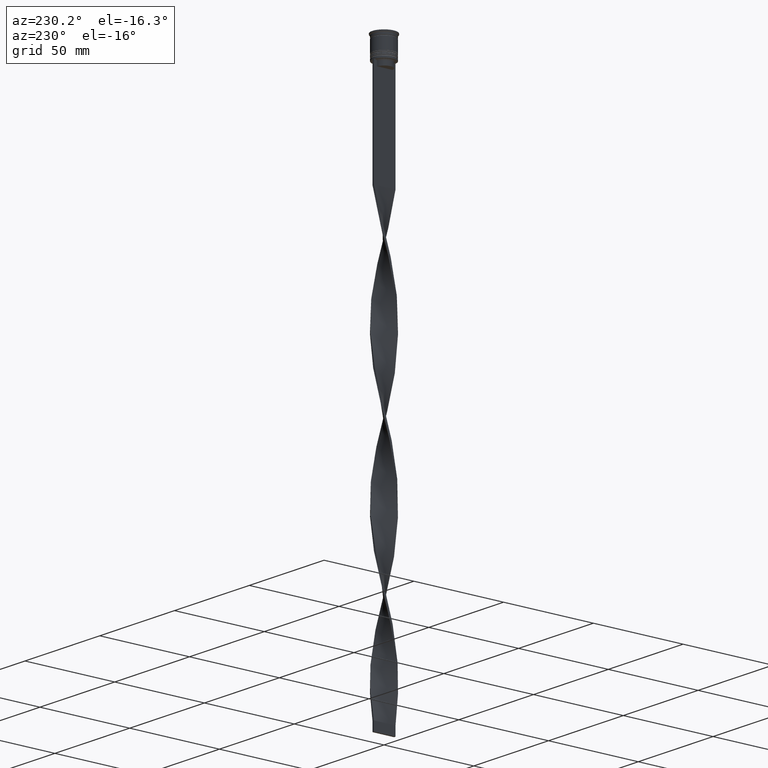
[diagram: clean part render]
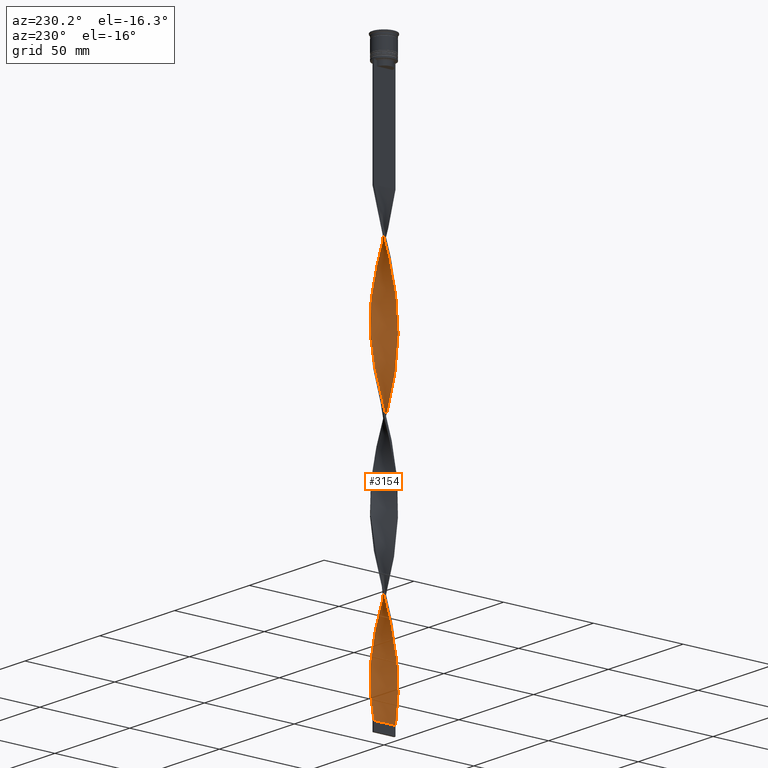
[diagram: same view with one face highlighted and labeled with its STEP entity id]
A machine part, auxiliary view. The second image highlights one B-rep face of the part: STEP entity #3154.
In plain terms, the highlighted face is a freeform B-spline surface patch.
Its self-contained STEP definition (entity closure, byte-faithful):
#16 = CARTESIAN_POINT ( 'NONE',  ( 2.329630224397263305, 5.551830600583448572, -219.8666666666666742 ) ) ;
#17 = CARTESIAN_POINT ( 'NONE',  ( 3.527358977712831134, 4.902271885939097906, -289.5750000000000455 ) ) ;
#30 = CARTESIAN_POINT ( 'NONE',  ( 0.4447626199438167727, 6.004347276090940433, -303.5166666666666515 ) ) ;
#34 = CARTESIAN_POINT ( 'NONE',  ( 1.432450960538955709, 5.847912811050711035, -223.8500000000000227 ) ) ;
#56 =( BOUNDED_CURVE ( )  B_SPLINE_CURVE ( 2, ( #510, #117, #453, #181, #2352, #1137, #2039, #3374, #2082, #769, #1469, #3054, #2975, #2667, #1776, #2370, #788, #3922, #2414, #3673, #1386, #1742, #3342, #1718, #830, #2099, #3036, #3614, #200, #1115, #1428, #3020, #3296, #3958, #144, #2391, #3652, #2687, #2744, #1411, #813, #3942, #1098, #494, #3997, #1153, #3687, #2059, #3322, #1696, #906, #3074, #3751, #3732, #928, #4017, #3709, #2448, #3415, #3109, #532, #2174, #4039, #3396, #1527, #2809, #1214, #220, #1233, #3794, #1195, #3132, #1505, #571, #1548, #3436, #2198, #1799, #869, #948, #2827, #2157, #2470, #1488, #2763, #4083, #4064, #2489, #281, #1836, #1171, #3091, #2139, #1817, #2510, #3458, #238, #551, #2217, #297, #594, #2785, #3771, #889, #257, #1860, #617, #1566, #1880, #3149, #2846, #4101, #1256, #2534, #1587, #1969, #1341, #1898, #30, #3191, #1923 ),
 .UNSPECIFIED., .F., .T. ) 
 B_SPLINE_CURVE_WITH_KNOTS ( ( 3, 2, 2, 2, 2, 2, 2, 2, 2, 2, 2, 2, 2, 2, 2, 2, 2, 2, 2, 2, 2, 2, 2, 2, 2, 2, 2, 2, 2, 2, 2, 2, 2, 2, 2, 2, 2, 2, 2, 2, 2, 2, 2, 2, 2, 2, 2, 2, 2, 2, 2, 2, 2, 2, 2, 2, 2, 2, 2, 2, 3 ),
 ( 0.000000000000000000, 0.01250000000000000243, 0.02500000000000000486, 0.03749999999999999861, 0.05000000000000000971, 0.06250000000000000000, 0.07499999999999999722, 0.08749999999999998057, 0.1000000000000000194, 0.1125000000000000028, 0.1250000000000000000, 0.1375000000000000111, 0.1499999999999999944, 0.1625000000000000056, 0.1749999999999999611, 0.1875000000000000000, 0.2000000000000000389, 0.2124999999999999944, 0.2250000000000000056, 0.2374999999999999611, 0.2500000000000000000, 0.2625000000000000111, 0.2750000000000000222, 0.2874999999999999778, 0.2999999999999999889, 0.3125000000000000000, 0.3250000000000000111, 0.3375000000000000777, 0.3499999999999999223, 0.3624999999999999889, 0.3750000000000000000, 0.3875000000000000111, 0.4000000000000000777, 0.4124999999999999223, 0.4249999999999999889, 0.4375000000000000000, 0.4500000000000000111, 0.4625000000000000777, 0.4749999999999999223, 0.4874999999999999889, 0.5000000000000000000, 0.5124999999999999556, 0.5250000000000000222, 0.5374999999999999778, 0.5500000000000000444, 0.5625000000000000000, 0.5749999999999999556, 0.5875000000000000222, 0.5999999999999999778, 0.6125000000000000444, 0.6250000000000000000, 0.6374999999999999556, 0.6500000000000000222, 0.6624999999999999778, 0.6750000000000001554, 0.6875000000000000000, 0.6999999999999998446, 0.7125000000000000222, 0.7249999999999999778, 0.7375000000000001554, 0.7500000000000000000 ),
 .UNSPECIFIED. ) 
 CURVE ( )  GEOMETRIC_REPRESENTATION_ITEM ( )  RATIONAL_B_SPLINE_CURVE ( ( 1.000000000000000000, 0.9969173337331279638, 1.000000000000000000, 0.9969173337331279638, 1.000000000000000000, 0.9969173337331279638, 1.000000000000000000, 0.9969173337331279638, 1.000000000000000000, 0.9969173337331279638, 1.000000000000000000, 0.9969173337331279638, 1.000000000000000000, 0.9969173337331279638, 1.000000000000000000, 0.9969173337331279638, 1.000000000000000000, 0.9969173337331279638, 1.000000000000000000, 0.9969173337331279638, 1.000000000000000000, 0.9969173337331279638, 1.000000000000000000, 0.9969173337331279638, 1.000000000000000000, 0.9969173337331279638, 1.000000000000000000, 0.9969173337331279638, 1.000000000000000000, 0.9969173337331279638, 1.000000000000000000, 0.9969173337331279638, 1.000000000000000000, 0.9969173337331279638, 1.000000000000000000, 0.9969173337331279638, 1.000000000000000000, 0.9969173337331279638, 1.000000000000000000, 0.9969173337331279638, 1.000000000000000000, 0.9969173337331279638, 1.000000000000000000, 0.9969173337331279638, 1.000000000000000000, 0.9969173337331279638, 1.000000000000000000, 0.9969173337331279638, 1.000000000000000000, 0.9969173337331279638, 1.000000000000000000, 0.9969173337331279638, 1.000000000000000000, 0.9969173337331279638, 1.000000000000000000, 0.9969173337331279638, 1.000000000000000000, 0.9969173337331279638, 1.000000000000000000, 0.9969173337331279638, 1.000000000000000000, 0.9969173337331279638, 1.000000000000000000, 0.9969173337331279638, 1.000000000000000000, 0.9969173337331279638, 1.000000000000000000, 0.9969173337331279638, 1.000000000000000000, 0.9969173337331279638, 1.000000000000000000, 0.9969173337331279638, 1.000000000000000000, 0.9969173337331279638, 1.000000000000000000, 0.9969173337331279638, 1.000000000000000000, 0.9969173337331279638, 1.000000000000000000, 0.9969173337331279638, 1.000000000000000000, 0.9969173337331279638, 1.000000000000000000, 0.9969173337331279638, 1.000000000000000000, 0.9969173337331279638, 1.000000000000000000, 0.9969173337331279638, 1.000000000000000000, 0.9969173337331279638, 1.000000000000000000, 0.9969173337331279638, 1.000000000000000000, 0.9969173337331279638, 1.000000000000000000, 0.9969173337331279638, 1.000000000000000000, 0.9969173337331279638, 1.000000000000000000, 0.9969173337331279638, 1.000000000000000000, 0.9969173337331279638, 1.000000000000000000, 0.9969173337331279638, 1.000000000000000000, 0.9969173337331279638, 1.000000000000000000, 0.9969173337331279638, 1.000000000000000000, 0.9969173337331279638, 1.000000000000000000, 0.9969173337331279638, 1.000000000000000000, 0.9969173337331279638, 1.000000000000000000, 0.9969173337331279638, 1.000000000000000000, 0.9969173337331279638, 1.000000000000000000, 0.9969173337331279638, 1.000000000000000000 ) ) 
 REPRESENTATION_ITEM ( '' )  );
#78 = CARTESIAN_POINT ( 'NONE',  ( -0.02778975905228881632, 6.039350853412309483, -305.5083333333334963 ) ) ;
#89 = CARTESIAN_POINT ( 'NONE',  ( -3.931220010942313881, -4.560209340103448028, -132.2333333333333485 ) ) ;
#108 = CARTESIAN_POINT ( 'NONE',  ( -0.5000000000000009992, -6.000000000000000888, -148.1666666666666572 ) ) ;
#117 = CARTESIAN_POINT ( 'NONE',  ( 0.9722102409477109131, -5.960649146587690517, -70.49166666666668846 ) ) ;
#129 = CARTESIAN_POINT ( 'NONE',  ( -5.147994592395922275, -3.122203016567364653, -124.2666666666666799 ) ) ;
#144 = CARTESIAN_POINT ( 'NONE',  ( 2.278439736343096822, 5.573034394999980101, -136.2166666666666686 ) ) ;
#151 = CARTESIAN_POINT ( 'NONE',  ( -5.393717298852746644, -2.717047055421899948, -281.6083333333334622 ) ) ;
#153 = CARTESIAN_POINT ( 'NONE',  ( -1.892691680130198728, -5.735176475513733330, -142.1916666666666913 ) ) ;
#172 = CARTESIAN_POINT ( 'NONE',  ( -4.560209340103448916, 3.931220010942312992, -251.7333333333333769 ) ) ;
#174 = CARTESIAN_POINT ( 'NONE',  ( 4.290116269486023981, 4.250815615339191389, -209.9083333333333599 ) ) ;
#181 = CARTESIAN_POINT ( 'NONE',  ( 1.892691680130197840, -5.735176475513731553, -74.47500000000000853 ) ) ;
#187 = CARTESIAN_POINT ( 'NONE',  ( 5.368484725653162926, 2.766568768664325439, -118.2916666666666998 ) ) ;
#190 = CARTESIAN_POINT ( 'NONE',  ( -6.039350853412312148, 0.02778975905228984328, -269.6583333333334167 ) ) ;
#200 = CARTESIAN_POINT ( 'NONE',  ( 4.560209340103447140, 3.931220010942311216, -124.2666666666666799 ) ) ;
#208 = CARTESIAN_POINT ( 'NONE',  ( -3.122203016567365541, 5.147994592395922275, -243.7666666666666799 ) ) ;
#213 = CARTESIAN_POINT ( 'NONE',  ( -6.004347276090943097, -0.4447626199438159400, -271.6499999999999773 ) ) ;
#220 = CARTESIAN_POINT ( 'NONE',  ( -4.869603064867703779, -3.572323752398602004, -201.9416666666667197 ) ) ;
#226 = CARTESIAN_POINT ( 'NONE',  ( -2.329630224397262417, -5.551830600583448572, -299.5333333333333030 ) ) ;
#230 = CARTESIAN_POINT ( 'NONE',  ( -0.9722102409477118012, -5.960649146587692293, -305.5083333333334394 ) ) ;
#238 = CARTESIAN_POINT ( 'NONE',  ( 5.860847594958394247, -1.378573708102107664, -259.7000000000000455 ) ) ;
#244 = CARTESIAN_POINT ( 'NONE',  ( -5.752351491147214446, 1.839832417264297026, -178.0416666666667140 ) ) ;
#247 = LINE ( 'NONE', #1514, #3185 ) ;
#257 = CARTESIAN_POINT ( 'NONE',  ( 5.551830600583447684, 2.329630224397260641, -275.6333333333333258 ) ) ;
#265 = CARTESIAN_POINT ( 'NONE',  ( -2.766568768664327216, -5.368484725653164702, -138.2083333333333144 ) ) ;
#266 = CARTESIAN_POINT ( 'NONE',  ( -0.4999999999999994449, 5.999999999999999112, -148.1666666666666572 ) ) ;
#273 = CARTESIAN_POINT ( 'NONE',  ( -0.9173149989399220772, 5.969343698769576712, -233.8083333333333371 ) ) ;
#281 = CARTESIAN_POINT ( 'NONE',  ( 3.931220010942312104, -4.560209340103447140, -243.7666666666666799 ) ) ;
#286 = CARTESIAN_POINT ( 'NONE',  ( 5.969343698769576712, 0.9173149989399183024, -193.9749999999999943 ) ) ;
#288 = CARTESIAN_POINT ( 'NONE',  ( 0.9722102409477109131, -5.960649146587691405, -229.8250000000000455 ) ) ;
#297 = CARTESIAN_POINT ( 'NONE',  ( 6.039350853412309483, 0.02778975905228925000, -265.6750000000000682 ) ) ;
#302 = CARTESIAN_POINT ( 'NONE',  ( -4.902271885939099683, -3.527358977712830246, -126.2583333333333258 ) ) ;
#303 = CARTESIAN_POINT ( 'NONE',  ( 2.766568768664325884, -5.368484725653162926, -237.7916666666667140 ) ) ;
#313 = CARTESIAN_POINT ( 'NONE',  ( -0.5000000000000004441, -2.000000000000000888, -307.5000000000000000 ) ) ;
#326 = CARTESIAN_POINT ( 'NONE',  ( 4.902271885939098794, 3.527358977712832910, -205.9250000000000114 ) ) ;
#328 = CARTESIAN_POINT ( 'NONE',  ( -5.960649146587691405, -0.9722102409477125784, -189.9916666666667027 ) ) ;
#349 = CARTESIAN_POINT ( 'NONE',  ( 0.5000000000000002220, 6.000000000000000888, -227.8333333333333428 ) ) ;
#403 = CARTESIAN_POINT ( 'NONE',  ( -3.889087296526011706, 4.596194077712559611, -88.41666666666667140 ) ) ;
#414 = CARTESIAN_POINT ( 'NONE',  ( 3.889087296526011261, 4.596194077712557835, -287.5833333333333712 ) ) ;
#423 = CARTESIAN_POINT ( 'NONE',  ( 3.122203016567364653, -5.147994592395922275, -164.1000000000000227 ) ) ;
#439 = CARTESIAN_POINT ( 'NONE',  ( -5.551830600583448572, 2.329630224397261973, -100.3666666666666742 ) ) ;
#443 = CARTESIAN_POINT ( 'NONE',  ( -5.573034394999981878, -2.278439736343096378, -120.2833333333333456 ) ) ;
#453 = CARTESIAN_POINT ( 'NONE',  ( 1.432450960538954154, -5.847912811050710147, -72.48333333333334849 ) ) ;
#460 = CARTESIAN_POINT ( 'NONE',  ( 3.931220010942312104, -4.560209340103447140, -84.43333333333333712 ) ) ;
#463 = CARTESIAN_POINT ( 'NONE',  ( -5.860847594958396911, -1.378573708102107220, -116.3000000000000114 ) ) ;
#482 = CARTESIAN_POINT ( 'NONE',  ( -6.039350853412311260, 0.02778975905228984675, -269.6583333333334167 ) ) ;
#484 = CARTESIAN_POINT ( 'NONE',  ( 0.9173149989399214110, -5.969343698769576712, -154.1416666666666799 ) ) ;
#494 = CARTESIAN_POINT ( 'NONE',  ( -1.892691680130197174, 5.735176475513731553, -154.1416666666666799 ) ) ;
#499 = CARTESIAN_POINT ( 'NONE',  ( 5.960649146587691405, 0.9722102409477105800, -110.3250000000000171 ) ) ;
#510 = CARTESIAN_POINT ( 'NONE',  ( 0.5000000000000002220, -5.999999999999999112, -68.50000000000000000 ) ) ;
#517 = CARTESIAN_POINT ( 'NONE',  ( 4.250815615339192277, 4.290116269486020428, -126.2583333333333258 ) ) ;
#522 = CARTESIAN_POINT ( 'NONE',  ( -3.931220010942313881, -4.560209340103448028, -291.5666666666667197 ) ) ;
#532 = CARTESIAN_POINT ( 'NONE',  ( -5.999999999999999112, -0.4999999999999991673, -188.0000000000000000 ) ) ;
#539 = CARTESIAN_POINT ( 'NONE',  ( 5.573034394999979213, -2.278439736343095934, -96.38333333333335418 ) ) ;
#551 = CARTESIAN_POINT ( 'NONE',  ( 5.969343698769574935, -0.9173149989399220772, -261.6916666666666629 ) ) ;
#557 = CARTESIAN_POINT ( 'NONE',  ( 4.596194077712558723, -3.889087296526011261, -247.7500000000000284 ) ) ;
#563 = CARTESIAN_POINT ( 'NONE',  ( -5.847912811050711923, 1.432450960538954821, -263.6833333333333940 ) ) ;
#571 = CARTESIAN_POINT ( 'NONE',  ( -2.717047055421898172, -5.393717298852745756, -213.8916666666666799 ) ) ;
#576 = CARTESIAN_POINT ( 'NONE',  ( 3.889087296526011706, -4.596194077712560500, -168.0833333333333712 ) ) ;
#577 = CARTESIAN_POINT ( 'NONE',  ( -3.169446260531463722, 5.119043895260433352, -160.1166666666666742 ) ) ;
#582 = CARTESIAN_POINT ( 'NONE',  ( -4.596194077712559611, -3.889087296526011706, -287.5833333333333712 ) ) ;
#594 = CARTESIAN_POINT ( 'NONE',  ( 5.999999999999999112, 0.4999999999999998890, -267.6666666666667425 ) ) ;
#602 = CARTESIAN_POINT ( 'NONE',  ( -5.147994592395922275, -3.122203016567364653, -124.2666666666666799 ) ) ;
#603 = CARTESIAN_POINT ( 'NONE',  ( 0.9173149989399225213, 5.969343698769574047, -142.1916666666666913 ) ) ;
#617 = CARTESIAN_POINT ( 'NONE',  ( 5.119043895260433352, 3.169446260531464610, -279.6166666666666742 ) ) ;
#622 = CARTESIAN_POINT ( 'NONE',  ( -5.752351491147217999, -1.839832417264293918, -118.2916666666666998 ) ) ;
#623 = CARTESIAN_POINT ( 'NONE',  ( 3.169446260531464610, -5.119043895260433352, -239.7833333333333599 ) ) ;
#638 = CARTESIAN_POINT ( 'NONE',  ( 5.368484725653162926, -2.766568768664329436, -178.0416666666667140 ) ) ;
#640 = CARTESIAN_POINT ( 'NONE',  ( -1.892691680130197174, 5.735176475513731553, -154.1416666666666799 ) ) ;
#650 = CARTESIAN_POINT ( 'NONE',  ( -0.5000000000000000000, 1.999999999999999112, -307.5000000000000000 ) ) ;
#662 = CARTESIAN_POINT ( 'NONE',  ( 3.169446260531466386, 5.119043895260433352, -215.8833333333333542 ) ) ;
#664 = CARTESIAN_POINT ( 'NONE',  ( 0.4447626199438167727, 6.004347276090940433, -303.5166666666666515 ) ) ;
#679 = CARTESIAN_POINT ( 'NONE',  ( -4.560209340103448916, 3.931220010942312992, -92.40000000000000568 ) ) ;
#688 = CARTESIAN_POINT ( 'NONE',  ( 1.839832417264293918, 5.752351491147216223, -297.5416666666666856 ) ) ;
#707 = CARTESIAN_POINT ( 'NONE',  ( 0.9173149989399225213, 5.969343698769574047, -301.5250000000000341 ) ) ;
#714 = CARTESIAN_POINT ( 'NONE',  ( -5.735176475513733330, 1.892691680130198728, -102.3583333333333343 ) ) ;
#733 = CARTESIAN_POINT ( 'NONE',  ( -0.9173149989399220772, 5.969343698769575823, -74.47500000000002274 ) ) ;
#738 = CARTESIAN_POINT ( 'NONE',  ( 4.869603064867704667, -3.572323752398603780, -174.0583333333333371 ) ) ;
#760 = CARTESIAN_POINT ( 'NONE',  ( 3.931220010942314769, 4.560209340103448028, -211.9000000000000057 ) ) ;
#769 = CARTESIAN_POINT ( 'NONE',  ( 4.290116269486021316, -4.250815615339192277, -86.42499999999999716 ) ) ;
#776 = CARTESIAN_POINT ( 'NONE',  ( -0.5000000000000009992, -6.000000000000000888, -307.5000000000000000 ) ) ;
#779 = CARTESIAN_POINT ( 'NONE',  ( -5.735176475513733330, 1.892691680130198728, -102.3583333333333485 ) ) ;
#786 = VERTEX_POINT ( 'NONE', #1471 ) ;
#788 = CARTESIAN_POINT ( 'NONE',  ( 5.860847594958394247, -1.378573708102107664, -100.3666666666666742 ) ) ;
#796 = CARTESIAN_POINT ( 'NONE',  ( -3.169446260531465498, -5.119043895260433352, -295.5499999999999545 ) ) ;
#800 = CARTESIAN_POINT ( 'NONE',  ( 5.573034394999981878, 2.278439736343095934, -199.9500000000000171 ) ) ;
#813 = CARTESIAN_POINT ( 'NONE',  ( -0.4999999999999994449, 5.999999999999999112, -148.1666666666666572 ) ) ;
#819 = CARTESIAN_POINT ( 'NONE',  ( -3.527358977712831134, 4.902271885939099683, -245.7583333333333826 ) ) ;
#821 = CARTESIAN_POINT ( 'NONE',  ( 5.960649146587692293, -0.9722102409477147988, -186.0083333333333258 ) ) ;
#830 = CARTESIAN_POINT ( 'NONE',  ( 5.551830600583447684, 2.329630224397260641, -116.3000000000000114 ) ) ;
#836 = CARTESIAN_POINT ( 'NONE',  ( 4.290116269486021316, -4.250815615339192277, -86.42499999999999716 ) ) ;
#839 = CARTESIAN_POINT ( 'NONE',  ( -5.573034394999981878, -2.278439736343096378, -279.6166666666666742 ) ) ;
#853 = CARTESIAN_POINT ( 'NONE',  ( -5.551830600583448572, 2.329630224397261973, -259.7000000000000455 ) ) ;
#869 = CARTESIAN_POINT ( 'NONE',  ( -0.4447626199438174388, -6.004347276090940433, -223.8500000000000227 ) ) ;
#877 = CARTESIAN_POINT ( 'NONE',  ( -3.122203016567365541, -5.147994592395919611, -211.9000000000000057 ) ) ;
#889 = CARTESIAN_POINT ( 'NONE',  ( 5.735176475513731553, 1.892691680130197396, -273.6416666666666515 ) ) ;
#894 = CARTESIAN_POINT ( 'NONE',  ( -5.847912811050710147, -1.432450960538953044, -191.9833333333333485 ) ) ;
#899 = CARTESIAN_POINT ( 'NONE',  ( -1.432450960538955043, -5.847912811050711035, -303.5166666666666515 ) ) ;
#906 = CARTESIAN_POINT ( 'NONE',  ( -4.596194077712557835, 3.889087296526011706, -168.0833333333333712 ) ) ;
#912 = CARTESIAN_POINT ( 'NONE',  ( -0.4447626199438162731, 6.004347276090943097, -231.8166666666666629 ) ) ;
#913 = CARTESIAN_POINT ( 'NONE',  ( 0.02778975905228550994, -6.039350853412309483, -225.8416666666666970 ) ) ;
#921 = CARTESIAN_POINT ( 'NONE',  ( -0.5000000000000009992, -6.000000000000000888, -307.5000000000000000 ) ) ;
#928 = CARTESIAN_POINT ( 'NONE',  ( -5.573034394999980101, 2.278439736343096822, -176.0500000000000114 ) ) ;
#934 = CARTESIAN_POINT ( 'NONE',  ( -5.860847594958396911, -1.378573708102107220, -116.3000000000000114 ) ) ;
#935 = CARTESIAN_POINT ( 'NONE',  ( 1.892691680130197840, -5.735176475513731553, -233.8083333333333371 ) ) ;
#944 = CARTESIAN_POINT ( 'NONE',  ( -5.368484725653164702, 2.766568768664326772, -98.37500000000001421 ) ) ;
#948 = CARTESIAN_POINT ( 'NONE',  ( 0.02778975905228550647, -6.039350853412309483, -225.8416666666666970 ) ) ;
#953 = CARTESIAN_POINT ( 'NONE',  ( 0.4447626199438153849, -6.004347276090943097, -152.1500000000000057 ) ) ;
#954 = CARTESIAN_POINT ( 'NONE',  ( -0.02778975905228881632, 6.039350853412309483, -146.1749999999999829 ) ) ;
#962 = CARTESIAN_POINT ( 'NONE',  ( -2.278439736343096378, 5.573034394999981878, -80.45000000000000284 ) ) ;
#973 = CARTESIAN_POINT ( 'NONE',  ( -5.393717298852746644, -2.717047055421899948, -122.2750000000000341 ) ) ;
#1018 = CARTESIAN_POINT ( 'NONE',  ( 6.039350853412309483, 0.02778975905228925000, -265.6750000000000682 ) ) ;
#1038 = CARTESIAN_POINT ( 'NONE',  ( 2.278439736343096822, 5.573034394999980101, -295.5499999999999545 ) ) ;
#1043 = CARTESIAN_POINT ( 'NONE',  ( -4.869603064867704667, 3.572323752398605556, -94.39166666666669414 ) ) ;
#1047 = CARTESIAN_POINT ( 'NONE',  ( -0.9722102409477118012, -5.960649146587692293, -146.1750000000000114 ) ) ;
#1069 = CARTESIAN_POINT ( 'NONE',  ( 5.860847594958396911, 1.378573708102106554, -195.9666666666666686 ) ) ;
#1086 = CARTESIAN_POINT ( 'NONE',  ( 5.752351491147216223, -1.839832417264293918, -98.37500000000002842 ) ) ;
#1088 = CARTESIAN_POINT ( 'NONE',  ( 6.004347276090943097, 0.4447626199438150518, -191.9833333333333485 ) ) ;
#1098 = CARTESIAN_POINT ( 'NONE',  ( -1.432450960538953488, 5.847912811050710147, -152.1500000000000057 ) ) ;
#1105 = CARTESIAN_POINT ( 'NONE',  ( -4.869603064867704667, 3.572323752398605556, -253.7250000000000512 ) ) ;
#1107 = CARTESIAN_POINT ( 'NONE',  ( -3.169446260531465498, -5.119043895260433352, -136.2166666666666686 ) ) ;
#1115 = CARTESIAN_POINT ( 'NONE',  ( 4.250815615339192277, 4.290116269486020428, -126.2583333333333400 ) ) ;
#1122 = CARTESIAN_POINT ( 'NONE',  ( -6.004347276090943097, -0.4447626199438159400, -271.6499999999999773 ) ) ;
#1126 = CARTESIAN_POINT ( 'NONE',  ( 1.432450960538955709, 5.847912811050711035, -223.8500000000000227 ) ) ;
#1137 = CARTESIAN_POINT ( 'NONE',  ( 2.766568768664325884, -5.368484725653162926, -78.45833333333334281 ) ) ;
#1142 = CARTESIAN_POINT ( 'NONE',  ( -4.290116269486023093, -4.250815615339194053, -289.5750000000000455 ) ) ;
#1145 = CARTESIAN_POINT ( 'NONE',  ( -4.902271885939099683, -3.527358977712830246, -285.5916666666666970 ) ) ;
#1153 = CARTESIAN_POINT ( 'NONE',  ( -2.766568768664324995, 5.368484725653163814, -158.1250000000000284 ) ) ;
#1158 = CARTESIAN_POINT ( 'NONE',  ( 0.9722102409477109131, -5.960649146587691405, -70.49166666666670267 ) ) ;
#1162 = CARTESIAN_POINT ( 'NONE',  ( -4.869603064867703779, 3.572323752398605556, -253.7250000000000227 ) ) ;
#1171 = CARTESIAN_POINT ( 'NONE',  ( 4.596194077712558723, -3.889087296526011261, -247.7500000000000284 ) ) ;
#1177 = CARTESIAN_POINT ( 'NONE',  ( 5.393717298852743980, -2.717047055421899948, -253.7250000000000512 ) ) ;
#1183 = CARTESIAN_POINT ( 'NONE',  ( -1.378573708102107664, 5.860847594958396023, -235.8000000000000114 ) ) ;
#1195 = CARTESIAN_POINT ( 'NONE',  ( -3.889087296526011706, -4.596194077712557835, -207.9166666666666572 ) ) ;
#1202 = CARTESIAN_POINT ( 'NONE',  ( -5.119043895260434240, -3.169446260531463722, -199.9500000000000171 ) ) ;
#1208 = CARTESIAN_POINT ( 'NONE',  ( -5.752351491147217999, -1.839832417264293918, -277.6250000000000568 ) ) ;
#1214 = CARTESIAN_POINT ( 'NONE',  ( -5.119043895260434240, -3.169446260531463722, -199.9500000000000171 ) ) ;
#1221 = CARTESIAN_POINT ( 'NONE',  ( 1.892691680130196952, 5.735176475513733330, -221.8583333333333769 ) ) ;
#1222 = CARTESIAN_POINT ( 'NONE',  ( -3.931220010942311216, 4.560209340103447140, -164.1000000000000227 ) ) ;
#1228 = CARTESIAN_POINT ( 'NONE',  ( -3.889087296526011706, 4.596194077712559611, -247.7500000000000284 ) ) ;
#1233 = CARTESIAN_POINT ( 'NONE',  ( -4.560209340103448028, -3.931220010942310328, -203.9333333333333655 ) ) ;
#1238 = CARTESIAN_POINT ( 'NONE',  ( -1.892691680130198728, -5.735176475513733330, -142.1916666666666913 ) ) ;
#1239 = CARTESIAN_POINT ( 'NONE',  ( -5.368484725653162037, -2.766568768664326772, -197.9583333333333997 ) ) ;
#1244 = VERTEX_POINT ( 'NONE', #2915 ) ;
#1256 = CARTESIAN_POINT ( 'NONE',  ( 3.122203016567365097, 5.147994592395919611, -291.5666666666667197 ) ) ;
#1262 = CARTESIAN_POINT ( 'NONE',  ( -3.169446260531465498, -5.119043895260433352, -136.2166666666666686 ) ) ;
#1263 = CARTESIAN_POINT ( 'NONE',  ( -3.889087296526011706, -4.596194077712557835, -207.9166666666666572 ) ) ;
#1284 = CARTESIAN_POINT ( 'NONE',  ( 0.9722102409477153540, 5.960649146587693181, -225.8416666666666970 ) ) ;
#1293 = CARTESIAN_POINT ( 'NONE',  ( -0.4447626199438162731, 6.004347276090943097, -72.48333333333334849 ) ) ;
#1301 = CARTESIAN_POINT ( 'NONE',  ( -0.9173149989399220772, 5.969343698769575823, -233.8083333333333371 ) ) ;
#1341 = CARTESIAN_POINT ( 'NONE',  ( 1.378573708102107886, 5.860847594958394247, -299.5333333333333030 ) ) ;
#1346 = CARTESIAN_POINT ( 'NONE',  ( 5.368484725653162926, 2.766568768664325439, -277.6250000000000568 ) ) ;
#1352 = CARTESIAN_POINT ( 'NONE',  ( -2.717047055421899948, 5.393717298852746644, -82.44166666666666288 ) ) ;
#1356 = CARTESIAN_POINT ( 'NONE',  ( 1.839832417264293252, -5.752351491147218887, -158.1250000000000284 ) ) ;
#1370 = CARTESIAN_POINT ( 'NONE',  ( -2.278439736343096378, 5.573034394999981878, -80.45000000000000284 ) ) ;
#1373 = CARTESIAN_POINT ( 'NONE',  ( 5.551830600583448572, -2.329630224397262417, -180.0333333333333599 ) ) ;
#1386 = CARTESIAN_POINT ( 'NONE',  ( 5.999999999999999112, 0.4999999999999998890, -108.3333333333333428 ) ) ;
#1398 = CARTESIAN_POINT ( 'NONE',  ( -5.393717298852747533, -2.717047055421899948, -122.2750000000000199 ) ) ;
#1411 = CARTESIAN_POINT ( 'NONE',  ( -0.02778975905228881632, 6.039350853412309483, -146.1750000000000114 ) ) ;
#1417 = CARTESIAN_POINT ( 'NONE',  ( -2.766568768664327216, -5.368484725653164702, -297.5416666666666856 ) ) ;
#1419 = CARTESIAN_POINT ( 'NONE',  ( 3.527358977712829802, -4.902271885939099683, -166.0916666666666970 ) ) ;
#1428 = CARTESIAN_POINT ( 'NONE',  ( 3.889087296526011261, 4.596194077712557835, -128.2500000000000000 ) ) ;
#1434 = CARTESIAN_POINT ( 'NONE',  ( -6.000000000000000888, 0.5000000000000005551, -267.6666666666667425 ) ) ;
#1436 = CARTESIAN_POINT ( 'NONE',  ( 2.766568768664329880, 5.368484725653162926, -217.8750000000000284 ) ) ;
#1439 =( BOUNDED_SURFACE ( )  B_SPLINE_SURFACE ( 1, 2, ( 
 ( #2025, #3903, #1669, #733, #2337, #2002, #1370, #1352, #3244, #3267, #2647, #3600, #1702, #1043, #2947, #3284, #439, #714, #2980, #2313, #3555, #2629, #3574, #1979, #934, #622, #2163, #973, #602, #302, #3153, #2560, #2222, #3480, #1262, #265, #3421, #1238, #3443, #2497, #1569, #3758, #953, #3816, #2203, #1885, #2850, #2893, #3776, #4088, #576, #1535, #1593, #4105, #2539, #638, #3463, #2815, #1868, #4070, #3137, #3172, #2242, #286, #1841, #3835, #1929, #3797, #1903, #326, #3196, #1552, #3115, #3501, #662, #2876, #16, #1221, #34, #1284, #349, #1614, #912, #1301, #2576, #2181, #2833, #2514, #208, #819, #1494, #3964, #172, #1105, #3638, #4004, #853, #1768, #2693, #2123, #1434, #482, #1122, #1805, #3080, #2750, #1750, #151, #2398, #1476, #3006, #1142, #2711, #3303, #796, #1417, #226, #3383, #3948, #2731, #776 ),
 ( #3658, #1158, #2435, #2044, #3694, #3620, #2378, #3679, #460, #836, #2067, #2770, #1454, #3330, #539, #1086, #2358, #1726, #3025, #2088, #3347, #499, #2104, #3063, #3044, #187, #3986, #2421, #3363, #517, #1786, #2817, #3117, #4048, #2477, #2851, #3798, #603, #1512, #954, #266, #3422, #4072, #640, #1904, #1570, #577, #3097, #1222, #3155, #1823, #4089, #1536, #2145, #3739, #244, #3173, #2223, #2792, #1554, #3718, #328, #894, #4107, #2204, #1239, #1202, #3482, #2182, #2498, #1263, #2164, #877, #3445, #3138, #2834, #2515, #3759, #1869, #913, #1594, #288, #3778, #935, #3464, #303, #623, #1887, #1842, #3402, #557, #2540, #4023, #1177, #2456, #1973, #2269, #1615, #3860, #1018, #3548, #2561, #3568, #2018, #3529, #1346, #3837, #2913, #3878, #3236, #414, #17, #3197, #3278, #1038, #688, #2288, #707, #664, #78, #2307 ) ),
 .UNSPECIFIED., .F., .F., .F. ) 
 B_SPLINE_SURFACE_WITH_KNOTS ( ( 2, 2 ),
 ( 3, 2, 2, 2, 2, 2, 2, 2, 2, 2, 2, 2, 2, 2, 2, 2, 2, 2, 2, 2, 2, 2, 2, 2, 2, 2, 2, 2, 2, 2, 2, 2, 2, 2, 2, 2, 2, 2, 2, 2, 2, 2, 2, 2, 2, 2, 2, 2, 2, 2, 2, 2, 2, 2, 2, 2, 2, 2, 2, 2, 3 ),
 ( 0.000000000000000000, 1.000000000000000000 ),
 ( 0.000000000000000000, 0.01250000000000000069, 0.02500000000000000139, 0.03749999999999999861, 0.05000000000000000278, 0.06250000000000000000, 0.07499999999999999722, 0.08749999999999999445, 0.1000000000000000056, 0.1125000000000000028, 0.1250000000000000000, 0.1375000000000000111, 0.1499999999999999944, 0.1625000000000000056, 0.1749999999999999889, 0.1875000000000000000, 0.2000000000000000111, 0.2124999999999999944, 0.2250000000000000056, 0.2374999999999999889, 0.2500000000000000000, 0.2625000000000000111, 0.2750000000000000222, 0.2874999999999999778, 0.2999999999999999889, 0.3125000000000000000, 0.3250000000000000111, 0.3375000000000000222, 0.3499999999999999778, 0.3624999999999999889, 0.3750000000000000000, 0.3875000000000000111, 0.4000000000000000222, 0.4124999999999999778, 0.4249999999999999889, 0.4375000000000000000, 0.4500000000000000111, 0.4625000000000000222, 0.4749999999999999778, 0.4874999999999999889, 0.5000000000000000000, 0.5124999999999999556, 0.5250000000000000222, 0.5374999999999999778, 0.5500000000000000444, 0.5625000000000000000, 0.5749999999999999556, 0.5875000000000000222, 0.5999999999999999778, 0.6125000000000000444, 0.6250000000000000000, 0.6374999999999999556, 0.6500000000000000222, 0.6624999999999999778, 0.6750000000000000444, 0.6875000000000000000, 0.6999999999999999556, 0.7125000000000000222, 0.7249999999999999778, 0.7375000000000000444, 0.7500000000000000000 ),
 .UNSPECIFIED. ) 
 GEOMETRIC_REPRESENTATION_ITEM ( )  RATIONAL_B_SPLINE_SURFACE ( (
 ( 1.000000000000000000, 0.9969173337331279638, 1.000000000000000000, 0.9969173337331279638, 1.000000000000000000, 0.9969173337331279638, 1.000000000000000000, 0.9969173337331279638, 1.000000000000000000, 0.9969173337331279638, 1.000000000000000000, 0.9969173337331279638, 1.000000000000000000, 0.9969173337331279638, 1.000000000000000000, 0.9969173337331279638, 1.000000000000000000, 0.9969173337331279638, 1.000000000000000000, 0.9969173337331279638, 1.000000000000000000, 0.9969173337331279638, 1.000000000000000000, 0.9969173337331279638, 1.000000000000000000, 0.9969173337331279638, 1.000000000000000000, 0.9969173337331279638, 1.000000000000000000, 0.9969173337331279638, 1.000000000000000000, 0.9969173337331279638, 1.000000000000000000, 0.9969173337331279638, 1.000000000000000000, 0.9969173337331279638, 1.000000000000000000, 0.9969173337331279638, 1.000000000000000000, 0.9969173337331279638, 1.000000000000000000, 0.9969173337331279638, 1.000000000000000000, 0.9969173337331279638, 1.000000000000000000, 0.9969173337331279638, 1.000000000000000000, 0.9969173337331279638, 1.000000000000000000, 0.9969173337331279638, 1.000000000000000000, 0.9969173337331279638, 1.000000000000000000, 0.9969173337331279638, 1.000000000000000000, 0.9969173337331279638, 1.000000000000000000, 0.9969173337331279638, 1.000000000000000000, 0.9969173337331279638, 1.000000000000000000, 0.9969173337331279638, 1.000000000000000000, 0.9969173337331279638, 1.000000000000000000, 0.9969173337331279638, 1.000000000000000000, 0.9969173337331279638, 1.000000000000000000, 0.9969173337331279638, 1.000000000000000000, 0.9969173337331279638, 1.000000000000000000, 0.9969173337331279638, 1.000000000000000000, 0.9969173337331279638, 1.000000000000000000, 0.9969173337331279638, 1.000000000000000000, 0.9969173337331279638, 1.000000000000000000, 0.9969173337331279638, 1.000000000000000000, 0.9969173337331279638, 1.000000000000000000, 0.9969173337331279638, 1.000000000000000000, 0.9969173337331279638, 1.000000000000000000, 0.9969173337331279638, 1.000000000000000000, 0.9969173337331279638, 1.000000000000000000, 0.9969173337331279638, 1.000000000000000000, 0.9969173337331279638, 1.000000000000000000, 0.9969173337331279638, 1.000000000000000000, 0.9969173337331279638, 1.000000000000000000, 0.9969173337331279638, 1.000000000000000000, 0.9969173337331279638, 1.000000000000000000, 0.9969173337331279638, 1.000000000000000000, 0.9969173337331279638, 1.000000000000000000, 0.9969173337331279638, 1.000000000000000000, 0.9969173337331279638, 1.000000000000000000, 0.9969173337331279638, 1.000000000000000000, 0.9969173337331279638, 1.000000000000000000, 0.9969173337331279638, 1.000000000000000000, 0.9969173337331279638, 1.000000000000000000),
 ( 1.000000000000000000, 0.9969173337331279638, 1.000000000000000000, 0.9969173337331279638, 1.000000000000000000, 0.9969173337331279638, 1.000000000000000000, 0.9969173337331279638, 1.000000000000000000, 0.9969173337331279638, 1.000000000000000000, 0.9969173337331279638, 1.000000000000000000, 0.9969173337331279638, 1.000000000000000000, 0.9969173337331279638, 1.000000000000000000, 0.9969173337331279638, 1.000000000000000000, 0.9969173337331279638, 1.000000000000000000, 0.9969173337331279638, 1.000000000000000000, 0.9969173337331279638, 1.000000000000000000, 0.9969173337331279638, 1.000000000000000000, 0.9969173337331279638, 1.000000000000000000, 0.9969173337331279638, 1.000000000000000000, 0.9969173337331279638, 1.000000000000000000, 0.9969173337331279638, 1.000000000000000000, 0.9969173337331279638, 1.000000000000000000, 0.9969173337331279638, 1.000000000000000000, 0.9969173337331279638, 1.000000000000000000, 0.9969173337331279638, 1.000000000000000000, 0.9969173337331279638, 1.000000000000000000, 0.9969173337331279638, 1.000000000000000000, 0.9969173337331279638, 1.000000000000000000, 0.9969173337331279638, 1.000000000000000000, 0.9969173337331279638, 1.000000000000000000, 0.9969173337331279638, 1.000000000000000000, 0.9969173337331279638, 1.000000000000000000, 0.9969173337331279638, 1.000000000000000000, 0.9969173337331279638, 1.000000000000000000, 0.9969173337331279638, 1.000000000000000000, 0.9969173337331279638, 1.000000000000000000, 0.9969173337331279638, 1.000000000000000000, 0.9969173337331279638, 1.000000000000000000, 0.9969173337331279638, 1.000000000000000000, 0.9969173337331279638, 1.000000000000000000, 0.9969173337331279638, 1.000000000000000000, 0.9969173337331279638, 1.000000000000000000, 0.9969173337331279638, 1.000000000000000000, 0.9969173337331279638, 1.000000000000000000, 0.9969173337331279638, 1.000000000000000000, 0.9969173337331279638, 1.000000000000000000, 0.9969173337331279638, 1.000000000000000000, 0.9969173337331279638, 1.000000000000000000, 0.9969173337331279638, 1.000000000000000000, 0.9969173337331279638, 1.000000000000000000, 0.9969173337331279638, 1.000000000000000000, 0.9969173337331279638, 1.000000000000000000, 0.9969173337331279638, 1.000000000000000000, 0.9969173337331279638, 1.000000000000000000, 0.9969173337331279638, 1.000000000000000000, 0.9969173337331279638, 1.000000000000000000, 0.9969173337331279638, 1.000000000000000000, 0.9969173337331279638, 1.000000000000000000, 0.9969173337331279638, 1.000000000000000000, 0.9969173337331279638, 1.000000000000000000, 0.9969173337331279638, 1.000000000000000000, 0.9969173337331279638, 1.000000000000000000, 0.9969173337331279638, 1.000000000000000000, 0.9969173337331279638, 1.000000000000000000) ) ) 
 REPRESENTATION_ITEM ( '' )  SURFACE ( )  );
#1454 = CARTESIAN_POINT ( 'NONE',  ( 5.147994592395920499, -3.122203016567364209, -92.40000000000000568 ) ) ;
#1469 = CARTESIAN_POINT ( 'NONE',  ( 4.596194077712558723, -3.889087296526011261, -88.41666666666667140 ) ) ;
#1471 = CARTESIAN_POINT ( 'NONE',  ( 0.5000000000000002220, -5.999999999999999112, -68.50000000000000000 ) ) ;
#1476 = CARTESIAN_POINT ( 'NONE',  ( -4.902271885939099683, -3.527358977712830246, -285.5916666666666401 ) ) ;
#1480 = CARTESIAN_POINT ( 'NONE',  ( -4.290116269486023093, -4.250815615339194053, -289.5750000000000455 ) ) ;
#1488 = CARTESIAN_POINT ( 'NONE',  ( 1.892691680130197840, -5.735176475513731553, -233.8083333333333371 ) ) ;
#1494 = CARTESIAN_POINT ( 'NONE',  ( -3.889087296526011706, 4.596194077712559611, -247.7500000000000284 ) ) ;
#1505 = CARTESIAN_POINT ( 'NONE',  ( -3.122203016567365541, -5.147994592395919611, -211.9000000000000057 ) ) ;
#1512 = CARTESIAN_POINT ( 'NONE',  ( 0.4447626199438167727, 6.004347276090940433, -144.1833333333333371 ) ) ;
#1514 = CARTESIAN_POINT ( 'NONE',  ( 0.5000000000000002220, -6.000000000000000000, -68.50000000000000000 ) ) ;
#1517 = CARTESIAN_POINT ( 'NONE',  ( -5.860847594958396911, -1.378573708102107220, -275.6333333333333258 ) ) ;
#1527 = CARTESIAN_POINT ( 'NONE',  ( -5.551830600583447684, -2.329630224397259752, -195.9666666666666686 ) ) ;
#1535 = CARTESIAN_POINT ( 'NONE',  ( 4.250815615339191389, -4.290116269486023981, -170.0750000000000455 ) ) ;
#1536 = CARTESIAN_POINT ( 'NONE',  ( -5.147994592395919611, 3.122203016567365097, -172.0666666666666629 ) ) ;
#1541 = CARTESIAN_POINT ( 'NONE',  ( -2.278439736343096378, 5.573034394999981878, -239.7833333333333599 ) ) ;
#1548 = CARTESIAN_POINT ( 'NONE',  ( -2.278439736343097710, -5.573034394999980101, -215.8833333333333542 ) ) ;
#1552 = CARTESIAN_POINT ( 'NONE',  ( 4.290116269486023981, 4.250815615339191389, -209.9083333333333883 ) ) ;
#1554 = CARTESIAN_POINT ( 'NONE',  ( -6.039350853412309483, -0.02778975905228582913, -186.0083333333333258 ) ) ;
#1566 = CARTESIAN_POINT ( 'NONE',  ( 4.869603064867703779, 3.572323752398604224, -281.6083333333334053 ) ) ;
#1569 = CARTESIAN_POINT ( 'NONE',  ( -0.5000000000000009992, -6.000000000000000888, -148.1666666666666572 ) ) ;
#1570 = CARTESIAN_POINT ( 'NONE',  ( -2.766568768664324995, 5.368484725653163814, -158.1250000000000000 ) ) ;
#1587 = CARTESIAN_POINT ( 'NONE',  ( 2.278439736343096822, 5.573034394999980101, -295.5499999999999545 ) ) ;
#1593 = CARTESIAN_POINT ( 'NONE',  ( 4.560209340103448028, -3.931220010942313881, -172.0666666666666629 ) ) ;
#1594 = CARTESIAN_POINT ( 'NONE',  ( 0.5000000000000002220, -5.999999999999999112, -227.8333333333333428 ) ) ;
#1614 = CARTESIAN_POINT ( 'NONE',  ( 0.02778975905228941307, 6.039350853412311260, -229.8250000000000455 ) ) ;
#1615 = CARTESIAN_POINT ( 'NONE',  ( 5.969343698769574047, -0.9173149989399220772, -261.6916666666666629 ) ) ;
#1624 = CARTESIAN_POINT ( 'NONE',  ( 0.02778975905228940960, 6.039350853412312148, -70.49166666666668846 ) ) ;
#1669 = CARTESIAN_POINT ( 'NONE',  ( -0.4447626199438162731, 6.004347276090943097, -72.48333333333334849 ) ) ;
#1673 = CARTESIAN_POINT ( 'NONE',  ( 0.5000000000000002220, 6.000000000000000888, -227.8333333333333428 ) ) ;
#1689 = CARTESIAN_POINT ( 'NONE',  ( 4.560209340103448028, -3.931220010942313881, -172.0666666666666629 ) ) ;
#1696 = CARTESIAN_POINT ( 'NONE',  ( -4.290116269486020428, 4.250815615339193165, -166.0916666666666970 ) ) ;
#1702 = CARTESIAN_POINT ( 'NONE',  ( -4.560209340103448916, 3.931220010942312992, -92.40000000000000568 ) ) ;
#1706 = CARTESIAN_POINT ( 'NONE',  ( -1.432450960538955043, -5.847912811050711035, -144.1833333333333371 ) ) ;
#1718 = CARTESIAN_POINT ( 'NONE',  ( 5.735176475513731553, 1.892691680130197396, -114.3083333333333655 ) ) ;
#1726 = CARTESIAN_POINT ( 'NONE',  ( 5.969343698769574047, -0.9173149989399220772, -102.3583333333333343 ) ) ;
#1730 = CARTESIAN_POINT ( 'NONE',  ( 5.393717298852748421, 2.717047055421897284, -201.9416666666667197 ) ) ;
#1740 = ORIENTED_EDGE ( 'NONE', *, *, #3334, .T. ) ;
#1742 = CARTESIAN_POINT ( 'NONE',  ( 5.960649146587690517, 0.9722102409477104690, -110.3250000000000171 ) ) ;
#1744 = VERTEX_POINT ( 'NONE', #3053 ) ;
#1750 = CARTESIAN_POINT ( 'NONE',  ( -5.573034394999981878, -2.278439736343096378, -279.6166666666666742 ) ) ;
#1752 = CARTESIAN_POINT ( 'NONE',  ( 1.378573708102106776, -5.860847594958396911, -156.1333333333333542 ) ) ;
#1768 = CARTESIAN_POINT ( 'NONE',  ( -5.735176475513733330, 1.892691680130198728, -261.6916666666666629 ) ) ;
#1770 = CARTESIAN_POINT ( 'NONE',  ( -5.969343698769576712, -0.9173149989399216331, -273.6416666666666515 ) ) ;
#1776 = CARTESIAN_POINT ( 'NONE',  ( 5.573034394999979213, -2.278439736343095934, -96.38333333333335418 ) ) ;
#1786 = CARTESIAN_POINT ( 'NONE',  ( 3.889087296526011261, 4.596194077712557835, -128.2500000000000000 ) ) ;
#1799 = CARTESIAN_POINT ( 'NONE',  ( -0.9173149989399203008, -5.969343698769574935, -221.8583333333333769 ) ) ;
#1805 = CARTESIAN_POINT ( 'NONE',  ( -5.969343698769575823, -0.9173149989399215221, -273.6416666666666515 ) ) ;
#1809 = DIRECTION ( 'NONE',  ( 0.000000000000000000, 1.000000000000000000, 0.000000000000000000 ) ) ;
#1810 = CARTESIAN_POINT ( 'NONE',  ( -5.368484725653164702, 2.766568768664326772, -257.7083333333333144 ) ) ;
#1817 = CARTESIAN_POINT ( 'NONE',  ( 5.393717298852744868, -2.717047055421899948, -253.7250000000000227 ) ) ;
#1821 = EDGE_LOOP ( 'NONE', ( #2707, #1740, #3939, #2685 ) ) ;
#1823 = CARTESIAN_POINT ( 'NONE',  ( -4.596194077712557835, 3.889087296526011706, -168.0833333333333712 ) ) ;
#1836 = CARTESIAN_POINT ( 'NONE',  ( 4.290116269486021316, -4.250815615339192277, -245.7583333333333826 ) ) ;
#1841 = CARTESIAN_POINT ( 'NONE',  ( 5.860847594958396911, 1.378573708102106554, -195.9666666666666686 ) ) ;
#1842 = CARTESIAN_POINT ( 'NONE',  ( 3.931220010942312104, -4.560209340103447140, -243.7666666666666799 ) ) ;
#1860 = CARTESIAN_POINT ( 'NONE',  ( 5.368484725653162926, 2.766568768664325439, -277.6250000000000568 ) ) ;
#1868 = CARTESIAN_POINT ( 'NONE',  ( 5.847912811050711035, -1.432450960538955265, -184.0166666666666515 ) ) ;
#1869 = CARTESIAN_POINT ( 'NONE',  ( -0.4447626199438174388, -6.004347276090940433, -223.8500000000000227 ) ) ;
#1880 = CARTESIAN_POINT ( 'NONE',  ( 4.560209340103447140, 3.931220010942311216, -283.6000000000000227 ) ) ;
#1885 = CARTESIAN_POINT ( 'NONE',  ( 1.839832417264293252, -5.752351491147218887, -158.1250000000000000 ) ) ;
#1887 = CARTESIAN_POINT ( 'NONE',  ( 3.572323752398604224, -4.869603064867703779, -241.7750000000000625 ) ) ;
#1898 = CARTESIAN_POINT ( 'NONE',  ( 0.9173149989399225213, 5.969343698769574935, -301.5250000000000341 ) ) ;
#1903 = CARTESIAN_POINT ( 'NONE',  ( 5.147994592395923164, 3.122203016567364209, -203.9333333333333655 ) ) ;
#1904 = CARTESIAN_POINT ( 'NONE',  ( -2.329630224397260196, 5.551830600583447684, -156.1333333333333542 ) ) ;
#1923 = CARTESIAN_POINT ( 'NONE',  ( -0.4999999999999994449, 5.999999999999999112, -307.5000000000000000 ) ) ;
#1929 = CARTESIAN_POINT ( 'NONE',  ( 5.573034394999981878, 2.278439736343095934, -199.9500000000000171 ) ) ;
#1963 = CARTESIAN_POINT ( 'NONE',  ( -4.869603064867703779, 3.572323752398605556, -94.39166666666669414 ) ) ;
#1969 = CARTESIAN_POINT ( 'NONE',  ( 1.839832417264293918, 5.752351491147216223, -297.5416666666666856 ) ) ;
#1973 = CARTESIAN_POINT ( 'NONE',  ( 5.752351491147216223, -1.839832417264293918, -257.7083333333333144 ) ) ;
#1979 = CARTESIAN_POINT ( 'NONE',  ( -5.969343698769575823, -0.9173149989399215221, -114.3083333333333655 ) ) ;
#2002 = CARTESIAN_POINT ( 'NONE',  ( -1.839832417264293918, 5.752351491147217999, -78.45833333333332860 ) ) ;
#2007 = CARTESIAN_POINT ( 'NONE',  ( -6.039350853412312148, 0.02778975905228984328, -110.3250000000000171 ) ) ;
#2018 = CARTESIAN_POINT ( 'NONE',  ( 5.735176475513731553, 1.892691680130197396, -273.6416666666666515 ) ) ;
#2025 = CARTESIAN_POINT ( 'NONE',  ( 0.5000000000000002220, 6.000000000000000888, -68.50000000000000000 ) ) ;
#2028 = CARTESIAN_POINT ( 'NONE',  ( 0.4447626199438153849, -6.004347276090943097, -152.1500000000000057 ) ) ;
#2032 =( BOUNDED_CURVE ( )  B_SPLINE_CURVE ( 2, ( #2527, #1624, #1293, #3227, #2212, #3163, #962, #2569, #2255, #4097, #403, #3517, #679, #1963, #3788, #944, #3471, #779, #2403, #3578, #2950, #2007, #3931, #3270, #463, #3332, #443, #1398, #129, #3662, #3287, #3603, #89, #3887, #1107, #2677, #3622, #153, #1706, #1047, #108, #2984, #2028, #484, #1752, #1356, #3027, #2632, #423, #1419, #2315, #2695, #1689, #738, #2967, #3950, #1373, #2381, #2652, #821, #2047, #3907, #1088, #3642, #1069, #2090, #800, #1730, #2360, #2342, #2071, #174, #760, #3308, #3009, #1436, #2713, #3968, #1126, #3349, #1673, #3069, #3427, #273, #1183, #2107, #1541, #3698, #4008, #3389, #1228, #2503, #2168, #1162, #3681, #1810, #3744, #2424, #563, #2128, #2736, #190, #213, #1770, #1517, #1208, #839, #3724, #3990, #1145, #582, #1480, #522, #4028, #3123, #2798, #3366, #3085, #899, #230, #2460 ),
 .UNSPECIFIED., .F., .T. ) 
 B_SPLINE_CURVE_WITH_KNOTS ( ( 3, 2, 2, 2, 2, 2, 2, 2, 2, 2, 2, 2, 2, 2, 2, 2, 2, 2, 2, 2, 2, 2, 2, 2, 2, 2, 2, 2, 2, 2, 2, 2, 2, 2, 2, 2, 2, 2, 2, 2, 2, 2, 2, 2, 2, 2, 2, 2, 2, 2, 2, 2, 2, 2, 2, 2, 2, 2, 2, 2, 3 ),
 ( 0.000000000000000000, 0.01250000000000000243, 0.02500000000000000486, 0.03749999999999999861, 0.05000000000000000971, 0.06250000000000000000, 0.07499999999999999722, 0.08749999999999998057, 0.1000000000000000194, 0.1125000000000000028, 0.1250000000000000000, 0.1375000000000000111, 0.1499999999999999944, 0.1625000000000000056, 0.1749999999999999611, 0.1875000000000000000, 0.2000000000000000389, 0.2124999999999999944, 0.2250000000000000056, 0.2374999999999999611, 0.2500000000000000000, 0.2625000000000000111, 0.2750000000000000222, 0.2874999999999999778, 0.2999999999999999889, 0.3125000000000000000, 0.3250000000000000111, 0.3375000000000000777, 0.3499999999999999223, 0.3624999999999999889, 0.3750000000000000000, 0.3875000000000000111, 0.4000000000000000777, 0.4124999999999999223, 0.4249999999999999889, 0.4375000000000000000, 0.4500000000000000111, 0.4625000000000000777, 0.4749999999999999223, 0.4874999999999999889, 0.5000000000000000000, 0.5124999999999999556, 0.5250000000000000222, 0.5374999999999999778, 0.5500000000000000444, 0.5625000000000000000, 0.5749999999999999556, 0.5875000000000000222, 0.5999999999999999778, 0.6125000000000000444, 0.6250000000000000000, 0.6374999999999999556, 0.6500000000000000222, 0.6624999999999999778, 0.6750000000000001554, 0.6875000000000000000, 0.6999999999999998446, 0.7125000000000000222, 0.7249999999999999778, 0.7375000000000001554, 0.7500000000000000000 ),
 .UNSPECIFIED. ) 
 CURVE ( )  GEOMETRIC_REPRESENTATION_ITEM ( )  RATIONAL_B_SPLINE_CURVE ( ( 1.000000000000000000, 0.9969173337331279638, 1.000000000000000000, 0.9969173337331279638, 1.000000000000000000, 0.9969173337331279638, 1.000000000000000000, 0.9969173337331279638, 1.000000000000000000, 0.9969173337331279638, 1.000000000000000000, 0.9969173337331279638, 1.000000000000000000, 0.9969173337331279638, 1.000000000000000000, 0.9969173337331279638, 1.000000000000000000, 0.9969173337331279638, 1.000000000000000000, 0.9969173337331279638, 1.000000000000000000, 0.9969173337331279638, 1.000000000000000000, 0.9969173337331279638, 1.000000000000000000, 0.9969173337331279638, 1.000000000000000000, 0.9969173337331279638, 1.000000000000000000, 0.9969173337331279638, 1.000000000000000000, 0.9969173337331279638, 1.000000000000000000, 0.9969173337331279638, 1.000000000000000000, 0.9969173337331279638, 1.000000000000000000, 0.9969173337331279638, 1.000000000000000000, 0.9969173337331279638, 1.000000000000000000, 0.9969173337331279638, 1.000000000000000000, 0.9969173337331279638, 1.000000000000000000, 0.9969173337331279638, 1.000000000000000000, 0.9969173337331279638, 1.000000000000000000, 0.9969173337331279638, 1.000000000000000000, 0.9969173337331279638, 1.000000000000000000, 0.9969173337331279638, 1.000000000000000000, 0.9969173337331279638, 1.000000000000000000, 0.9969173337331279638, 1.000000000000000000, 0.9969173337331279638, 1.000000000000000000, 0.9969173337331279638, 1.000000000000000000, 0.9969173337331279638, 1.000000000000000000, 0.9969173337331279638, 1.000000000000000000, 0.9969173337331279638, 1.000000000000000000, 0.9969173337331279638, 1.000000000000000000, 0.9969173337331279638, 1.000000000000000000, 0.9969173337331279638, 1.000000000000000000, 0.9969173337331279638, 1.000000000000000000, 0.9969173337331279638, 1.000000000000000000, 0.9969173337331279638, 1.000000000000000000, 0.9969173337331279638, 1.000000000000000000, 0.9969173337331279638, 1.000000000000000000, 0.9969173337331279638, 1.000000000000000000, 0.9969173337331279638, 1.000000000000000000, 0.9969173337331279638, 1.000000000000000000, 0.9969173337331279638, 1.000000000000000000, 0.9969173337331279638, 1.000000000000000000, 0.9969173337331279638, 1.000000000000000000, 0.9969173337331279638, 1.000000000000000000, 0.9969173337331279638, 1.000000000000000000, 0.9969173337331279638, 1.000000000000000000, 0.9969173337331279638, 1.000000000000000000, 0.9969173337331279638, 1.000000000000000000, 0.9969173337331279638, 1.000000000000000000, 0.9969173337331279638, 1.000000000000000000, 0.9969173337331279638, 1.000000000000000000, 0.9969173337331279638, 1.000000000000000000, 0.9969173337331279638, 1.000000000000000000, 0.9969173337331279638, 1.000000000000000000, 0.9969173337331279638, 1.000000000000000000 ) ) 
 REPRESENTATION_ITEM ( '' )  );
#2039 = CARTESIAN_POINT ( 'NONE',  ( 3.169446260531464610, -5.119043895260433352, -80.45000000000000284 ) ) ;
#2044 = CARTESIAN_POINT ( 'NONE',  ( 1.892691680130197840, -5.735176475513731553, -74.47500000000002274 ) ) ;
#2047 = CARTESIAN_POINT ( 'NONE',  ( 6.000000000000000888, -0.5000000000000013323, -188.0000000000000000 ) ) ;
#2059 = CARTESIAN_POINT ( 'NONE',  ( -3.572323752398603780, 4.869603064867703779, -162.1083333333333769 ) ) ;
#2067 = CARTESIAN_POINT ( 'NONE',  ( 4.596194077712558723, -3.889087296526011261, -88.41666666666667140 ) ) ;
#2071 = CARTESIAN_POINT ( 'NONE',  ( 4.596194077712559611, 3.889087296526010817, -207.9166666666666572 ) ) ;
#2082 = CARTESIAN_POINT ( 'NONE',  ( 3.931220010942312104, -4.560209340103447140, -84.43333333333333712 ) ) ;
#2088 = CARTESIAN_POINT ( 'NONE',  ( 6.039350853412309483, 0.02778975905228925000, -106.3416666666666686 ) ) ;
#2090 = CARTESIAN_POINT ( 'NONE',  ( 5.752351491147217111, 1.839832417264295694, -197.9583333333333712 ) ) ;
#2099 = CARTESIAN_POINT ( 'NONE',  ( 5.368484725653162926, 2.766568768664325439, -118.2916666666666998 ) ) ;
#2104 = CARTESIAN_POINT ( 'NONE',  ( 5.847912811050710147, 1.432450960538953932, -112.3166666666666771 ) ) ;
#2107 = CARTESIAN_POINT ( 'NONE',  ( -1.839832417264293918, 5.752351491147217999, -237.7916666666667140 ) ) ;
#2123 = CARTESIAN_POINT ( 'NONE',  ( -5.960649146587693181, 0.9722102409477114682, -265.6750000000000682 ) ) ;
#2128 = CARTESIAN_POINT ( 'NONE',  ( -5.960649146587692293, 0.9722102409477114682, -265.6750000000000682 ) ) ;
#2139 = CARTESIAN_POINT ( 'NONE',  ( 5.147994592395920499, -3.122203016567364209, -251.7333333333333769 ) ) ;
#2145 = CARTESIAN_POINT ( 'NONE',  ( -5.393717298852745756, 2.717047055421897728, -174.0583333333333371 ) ) ;
#2157 = CARTESIAN_POINT ( 'NONE',  ( 0.9722102409477109131, -5.960649146587690517, -229.8250000000000171 ) ) ;
#2163 = CARTESIAN_POINT ( 'NONE',  ( -5.573034394999981878, -2.278439736343096378, -120.2833333333333456 ) ) ;
#2164 = CARTESIAN_POINT ( 'NONE',  ( -3.527358977712832910, -4.902271885939095242, -209.9083333333333883 ) ) ;
#2168 = CARTESIAN_POINT ( 'NONE',  ( -4.560209340103448916, 3.931220010942312992, -251.7333333333333769 ) ) ;
#2174 = CARTESIAN_POINT ( 'NONE',  ( -5.960649146587690517, -0.9722102409477125784, -189.9916666666667027 ) ) ;
#2181 = CARTESIAN_POINT ( 'NONE',  ( -1.839832417264293918, 5.752351491147217999, -237.7916666666667140 ) ) ;
#2182 = CARTESIAN_POINT ( 'NONE',  ( -4.560209340103448028, -3.931220010942310328, -203.9333333333333655 ) ) ;
#2196 = EDGE_CURVE ( 'NONE', #786, #1744, #247, .T. ) ;
#2198 = CARTESIAN_POINT ( 'NONE',  ( -1.378573708102108997, -5.860847594958394247, -219.8666666666666742 ) ) ;
#2203 = CARTESIAN_POINT ( 'NONE',  ( 1.378573708102106776, -5.860847594958396911, -156.1333333333333542 ) ) ;
#2204 = CARTESIAN_POINT ( 'NONE',  ( -5.551830600583447684, -2.329630224397259752, -195.9666666666666686 ) ) ;
#2212 = CARTESIAN_POINT ( 'NONE',  ( -1.378573708102107664, 5.860847594958396023, -76.46666666666666856 ) ) ;
#2217 = CARTESIAN_POINT ( 'NONE',  ( 6.004347276090941321, -0.4447626199438162731, -263.6833333333333940 ) ) ;
#2222 = CARTESIAN_POINT ( 'NONE',  ( -3.931220010942313881, -4.560209340103448028, -132.2333333333333485 ) ) ;
#2223 = CARTESIAN_POINT ( 'NONE',  ( -5.969343698769574047, 0.9173149989399200788, -182.0250000000000341 ) ) ;
#2242 = CARTESIAN_POINT ( 'NONE',  ( 6.004347276090943097, 0.4447626199438150518, -191.9833333333333485 ) ) ;
#2255 = CARTESIAN_POINT ( 'NONE',  ( -3.122203016567365541, 5.147994592395922275, -84.43333333333333712 ) ) ;
#2269 = CARTESIAN_POINT ( 'NONE',  ( 5.860847594958394247, -1.378573708102107664, -259.7000000000000455 ) ) ;
#2288 = CARTESIAN_POINT ( 'NONE',  ( 1.378573708102107886, 5.860847594958394247, -299.5333333333333030 ) ) ;
#2307 = CARTESIAN_POINT ( 'NONE',  ( -0.4999999999999994449, 5.999999999999999112, -307.5000000000000000 ) ) ;
#2313 = CARTESIAN_POINT ( 'NONE',  ( -5.960649146587693181, 0.9722102409477114682, -106.3416666666666686 ) ) ;
#2315 = CARTESIAN_POINT ( 'NONE',  ( 3.889087296526011706, -4.596194077712560500, -168.0833333333333712 ) ) ;
#2337 = CARTESIAN_POINT ( 'NONE',  ( -1.378573708102107664, 5.860847594958396023, -76.46666666666666856 ) ) ;
#2342 = CARTESIAN_POINT ( 'NONE',  ( 4.902271885939098794, 3.527358977712832910, -205.9250000000000114 ) ) ;
#2352 = CARTESIAN_POINT ( 'NONE',  ( 2.329630224397261085, -5.551830600583446795, -76.46666666666666856 ) ) ;
#2358 = CARTESIAN_POINT ( 'NONE',  ( 5.860847594958394247, -1.378573708102107664, -100.3666666666666742 ) ) ;
#2360 = CARTESIAN_POINT ( 'NONE',  ( 5.147994592395923164, 3.122203016567364209, -203.9333333333333655 ) ) ;
#2370 = CARTESIAN_POINT ( 'NONE',  ( 5.752351491147216223, -1.839832417264293918, -98.37500000000001421 ) ) ;
#2378 = CARTESIAN_POINT ( 'NONE',  ( 3.169446260531464610, -5.119043895260433352, -80.45000000000000284 ) ) ;
#2381 = CARTESIAN_POINT ( 'NONE',  ( 5.735176475513733330, -1.892691680130196730, -182.0250000000000341 ) ) ;
#2391 = CARTESIAN_POINT ( 'NONE',  ( 1.839832417264293918, 5.752351491147216223, -138.2083333333333144 ) ) ;
#2398 = CARTESIAN_POINT ( 'NONE',  ( -5.147994592395922275, -3.122203016567364653, -283.6000000000000227 ) ) ;
#2403 = CARTESIAN_POINT ( 'NONE',  ( -5.847912811050711923, 1.432450960538954821, -104.3499999999999943 ) ) ;
#2414 = CARTESIAN_POINT ( 'NONE',  ( 6.004347276090941321, -0.4447626199438162731, -104.3499999999999943 ) ) ;
#2421 = CARTESIAN_POINT ( 'NONE',  ( 4.869603064867703779, 3.572323752398604224, -122.2750000000000341 ) ) ;
#2424 = CARTESIAN_POINT ( 'NONE',  ( -5.735176475513733330, 1.892691680130198728, -261.6916666666666629 ) ) ;
#2435 = CARTESIAN_POINT ( 'NONE',  ( 1.432450960538954154, -5.847912811050710147, -72.48333333333334849 ) ) ;
#2448 = CARTESIAN_POINT ( 'NONE',  ( -5.969343698769574935, 0.9173149989399200788, -182.0250000000000341 ) ) ;
#2456 = CARTESIAN_POINT ( 'NONE',  ( 5.573034394999979213, -2.278439736343095934, -255.7166666666666970 ) ) ;
#2460 = CARTESIAN_POINT ( 'NONE',  ( -0.5000000000000009992, -6.000000000000000888, -307.5000000000000000 ) ) ;
#2470 = CARTESIAN_POINT ( 'NONE',  ( 1.432450960538954154, -5.847912811050710147, -231.8166666666666629 ) ) ;
#2477 = CARTESIAN_POINT ( 'NONE',  ( 2.278439736343096822, 5.573034394999980101, -136.2166666666666686 ) ) ;
#2486 = VERTEX_POINT ( 'NONE', #921 ) ;
#2489 = CARTESIAN_POINT ( 'NONE',  ( 3.572323752398604224, -4.869603064867703779, -241.7750000000000341 ) ) ;
#2497 = CARTESIAN_POINT ( 'NONE',  ( -0.9722102409477118012, -5.960649146587693181, -146.1749999999999829 ) ) ;
#2498 = CARTESIAN_POINT ( 'NONE',  ( -4.250815615339191389, -4.290116269486022205, -205.9250000000000114 ) ) ;
#2503 = CARTESIAN_POINT ( 'NONE',  ( -4.250815615339194053, 4.290116269486022205, -249.7416666666667027 ) ) ;
#2510 = CARTESIAN_POINT ( 'NONE',  ( 5.573034394999979213, -2.278439736343095934, -255.7166666666666970 ) ) ;
#2514 = CARTESIAN_POINT ( 'NONE',  ( -2.717047055421899948, 5.393717298852746644, -241.7750000000000625 ) ) ;
#2515 = CARTESIAN_POINT ( 'NONE',  ( -1.378573708102108997, -5.860847594958394247, -219.8666666666666742 ) ) ;
#2527 = CARTESIAN_POINT ( 'NONE',  ( 0.5000000000000002220, 6.000000000000000888, -68.50000000000000000 ) ) ;
#2534 = CARTESIAN_POINT ( 'NONE',  ( 2.717047055421899948, 5.393717298852744868, -293.5583333333333940 ) ) ;
#2539 = CARTESIAN_POINT ( 'NONE',  ( 5.119043895260433352, -3.169446260531466386, -176.0500000000000114 ) ) ;
#2540 = CARTESIAN_POINT ( 'NONE',  ( 4.902271885939097906, -3.527358977712830246, -249.7416666666666742 ) ) ;
#2560 = CARTESIAN_POINT ( 'NONE',  ( -4.290116269486023093, -4.250815615339194053, -130.2416666666667027 ) ) ;
#2561 = CARTESIAN_POINT ( 'NONE',  ( 5.960649146587691405, 0.9722102409477105800, -269.6583333333334167 ) ) ;
#2569 = CARTESIAN_POINT ( 'NONE',  ( -2.717047055421899948, 5.393717298852747533, -82.44166666666667709 ) ) ;
#2576 = CARTESIAN_POINT ( 'NONE',  ( -1.378573708102107664, 5.860847594958396023, -235.8000000000000114 ) ) ;
#2614 = CARTESIAN_POINT ( 'NONE',  ( -0.4999999999999994449, 5.999999999999999112, -307.5000000000000000 ) ) ;
#2629 = CARTESIAN_POINT ( 'NONE',  ( -6.039350853412311260, 0.02778975905228984675, -110.3250000000000171 ) ) ;
#2632 = CARTESIAN_POINT ( 'NONE',  ( 2.717047055421899060, -5.393717298852747533, -162.1083333333333769 ) ) ;
#2647 = CARTESIAN_POINT ( 'NONE',  ( -3.889087296526011706, 4.596194077712559611, -88.41666666666667140 ) ) ;
#2652 = CARTESIAN_POINT ( 'NONE',  ( 5.847912811050711035, -1.432450960538955265, -184.0166666666666515 ) ) ;
#2667 = CARTESIAN_POINT ( 'NONE',  ( 5.393717298852744868, -2.717047055421899948, -94.39166666666669414 ) ) ;
#2677 = CARTESIAN_POINT ( 'NONE',  ( -2.766568768664327216, -5.368484725653164702, -138.2083333333333144 ) ) ;
#2681 = EDGE_CURVE ( 'NONE', #2486, #1244, #3604, .T. ) ;
#2685 = ORIENTED_EDGE ( 'NONE', *, *, #2816, .F. ) ;
#2687 = CARTESIAN_POINT ( 'NONE',  ( 0.9173149989399225213, 5.969343698769574935, -142.1916666666666913 ) ) ;
#2693 = CARTESIAN_POINT ( 'NONE',  ( -5.847912811050711923, 1.432450960538954821, -263.6833333333333940 ) ) ;
#2695 = CARTESIAN_POINT ( 'NONE',  ( 4.250815615339191389, -4.290116269486023981, -170.0750000000000455 ) ) ;
#2707 = ORIENTED_EDGE ( 'NONE', *, *, #2196, .F. ) ;
#2711 = CARTESIAN_POINT ( 'NONE',  ( -3.931220010942313881, -4.560209340103448028, -291.5666666666667197 ) ) ;
#2713 = CARTESIAN_POINT ( 'NONE',  ( 2.329630224397263305, 5.551830600583448572, -219.8666666666666742 ) ) ;
#2731 = CARTESIAN_POINT ( 'NONE',  ( -0.9722102409477118012, -5.960649146587693181, -305.5083333333334963 ) ) ;
#2736 = CARTESIAN_POINT ( 'NONE',  ( -6.000000000000000888, 0.5000000000000005551, -267.6666666666667425 ) ) ;
#2744 = CARTESIAN_POINT ( 'NONE',  ( 0.4447626199438167727, 6.004347276090940433, -144.1833333333333371 ) ) ;
#2750 = CARTESIAN_POINT ( 'NONE',  ( -5.752351491147217999, -1.839832417264293918, -277.6250000000000568 ) ) ;
#2763 = CARTESIAN_POINT ( 'NONE',  ( 2.329630224397261085, -5.551830600583446795, -235.8000000000000114 ) ) ;
#2770 = CARTESIAN_POINT ( 'NONE',  ( 4.902271885939097906, -3.527358977712830246, -90.40833333333334565 ) ) ;
#2785 = CARTESIAN_POINT ( 'NONE',  ( 5.960649146587690517, 0.9722102409477104690, -269.6583333333334167 ) ) ;
#2792 = CARTESIAN_POINT ( 'NONE',  ( -6.004347276090940433, 0.4447626199438171057, -184.0166666666666515 ) ) ;
#2798 = CARTESIAN_POINT ( 'NONE',  ( -2.766568768664327216, -5.368484725653164702, -297.5416666666666856 ) ) ;
#2809 = CARTESIAN_POINT ( 'NONE',  ( -5.368484725653162037, -2.766568768664326772, -197.9583333333333712 ) ) ;
#2815 = CARTESIAN_POINT ( 'NONE',  ( 5.735176475513733330, -1.892691680130196730, -182.0250000000000341 ) ) ;
#2816 = EDGE_CURVE ( 'NONE', #1744, #2486, #2032, .T. ) ;
#2817 = CARTESIAN_POINT ( 'NONE',  ( 3.527358977712831134, 4.902271885939097906, -130.2416666666667027 ) ) ;
#2827 = CARTESIAN_POINT ( 'NONE',  ( 0.5000000000000002220, -5.999999999999999112, -227.8333333333333428 ) ) ;
#2833 = CARTESIAN_POINT ( 'NONE',  ( -2.278439736343096378, 5.573034394999981878, -239.7833333333333599 ) ) ;
#2834 = CARTESIAN_POINT ( 'NONE',  ( -1.839832417264297026, -5.752351491147214446, -217.8750000000000568 ) ) ;
#2846 = CARTESIAN_POINT ( 'NONE',  ( 3.889087296526011261, 4.596194077712557835, -287.5833333333333712 ) ) ;
#2850 = CARTESIAN_POINT ( 'NONE',  ( 2.278439736343095934, -5.573034394999981878, -160.1166666666666742 ) ) ;
#2851 = CARTESIAN_POINT ( 'NONE',  ( 1.839832417264293918, 5.752351491147216223, -138.2083333333333144 ) ) ;
#2876 = CARTESIAN_POINT ( 'NONE',  ( 2.766568768664329880, 5.368484725653162926, -217.8750000000000568 ) ) ;
#2893 = CARTESIAN_POINT ( 'NONE',  ( 2.717047055421899060, -5.393717298852746644, -162.1083333333333769 ) ) ;
#2913 = CARTESIAN_POINT ( 'NONE',  ( 4.869603064867703779, 3.572323752398604224, -281.6083333333334622 ) ) ;
#2915 = CARTESIAN_POINT ( 'NONE',  ( -0.4999999999999994449, 5.999999999999999112, -307.5000000000000000 ) ) ;
#2923 = CARTESIAN_POINT ( 'NONE',  ( -0.5000000000000009992, -6.000000000000000888, -307.5000000000000000 ) ) ;
#2947 = CARTESIAN_POINT ( 'NONE',  ( -5.119043895260434240, 3.169446260531465498, -96.38333333333335418 ) ) ;
#2950 = CARTESIAN_POINT ( 'NONE',  ( -6.000000000000000888, 0.5000000000000005551, -108.3333333333333428 ) ) ;
#2963 = FACE_OUTER_BOUND ( 'NONE', #1821, .T. ) ;
#2967 = CARTESIAN_POINT ( 'NONE',  ( 5.119043895260433352, -3.169446260531466386, -176.0500000000000114 ) ) ;
#2975 = CARTESIAN_POINT ( 'NONE',  ( 5.147994592395920499, -3.122203016567364209, -92.40000000000000568 ) ) ;
#2980 = CARTESIAN_POINT ( 'NONE',  ( -5.847912811050711923, 1.432450960538954821, -104.3499999999999943 ) ) ;
#2984 = CARTESIAN_POINT ( 'NONE',  ( -0.02778975905229016594, -6.039350853412312148, -150.1583333333333599 ) ) ;
#3006 = CARTESIAN_POINT ( 'NONE',  ( -4.596194077712559611, -3.889087296526011706, -287.5833333333333712 ) ) ;
#3009 = CARTESIAN_POINT ( 'NONE',  ( 3.169446260531466386, 5.119043895260433352, -215.8833333333333542 ) ) ;
#3020 = CARTESIAN_POINT ( 'NONE',  ( 3.527358977712831134, 4.902271885939097906, -130.2416666666667027 ) ) ;
#3025 = CARTESIAN_POINT ( 'NONE',  ( 6.004347276090941321, -0.4447626199438162731, -104.3499999999999943 ) ) ;
#3027 = CARTESIAN_POINT ( 'NONE',  ( 2.278439736343095934, -5.573034394999981878, -160.1166666666666742 ) ) ;
#3036 = CARTESIAN_POINT ( 'NONE',  ( 5.119043895260433352, 3.169446260531464610, -120.2833333333333456 ) ) ;
#3044 = CARTESIAN_POINT ( 'NONE',  ( 5.551830600583447684, 2.329630224397260641, -116.3000000000000114 ) ) ;
#3053 = CARTESIAN_POINT ( 'NONE',  ( 0.5000000000000002220, 6.000000000000000888, -68.50000000000000000 ) ) ;
#3054 = CARTESIAN_POINT ( 'NONE',  ( 4.902271885939097906, -3.527358977712830246, -90.40833333333335986 ) ) ;
#3063 = CARTESIAN_POINT ( 'NONE',  ( 5.735176475513731553, 1.892691680130197396, -114.3083333333333655 ) ) ;
#3069 = CARTESIAN_POINT ( 'NONE',  ( 0.02778975905228940960, 6.039350853412312148, -229.8250000000000171 ) ) ;
#3074 = CARTESIAN_POINT ( 'NONE',  ( -4.902271885939096130, 3.527358977712832910, -170.0750000000000455 ) ) ;
#3080 = CARTESIAN_POINT ( 'NONE',  ( -5.860847594958396911, -1.378573708102107220, -275.6333333333333258 ) ) ;
#3085 = CARTESIAN_POINT ( 'NONE',  ( -1.892691680130198728, -5.735176475513733330, -301.5250000000000341 ) ) ;
#3091 = CARTESIAN_POINT ( 'NONE',  ( 4.902271885939097906, -3.527358977712830246, -249.7416666666667027 ) ) ;
#3097 = CARTESIAN_POINT ( 'NONE',  ( -3.572323752398603336, 4.869603064867703779, -162.1083333333333769 ) ) ;
#3109 = CARTESIAN_POINT ( 'NONE',  ( -6.039350853412309483, -0.02778975905228582913, -186.0083333333333258 ) ) ;
#3115 = CARTESIAN_POINT ( 'NONE',  ( 3.931220010942314769, 4.560209340103448028, -211.9000000000000057 ) ) ;
#3117 = CARTESIAN_POINT ( 'NONE',  ( 3.122203016567365097, 5.147994592395919611, -132.2333333333333485 ) ) ;
#3123 = CARTESIAN_POINT ( 'NONE',  ( -3.169446260531465498, -5.119043895260433352, -295.5499999999999545 ) ) ;
#3132 = CARTESIAN_POINT ( 'NONE',  ( -3.527358977712832910, -4.902271885939095242, -209.9083333333333599 ) ) ;
#3137 = CARTESIAN_POINT ( 'NONE',  ( 6.000000000000000888, -0.5000000000000013323, -188.0000000000000000 ) ) ;
#3138 = CARTESIAN_POINT ( 'NONE',  ( -2.278439736343097710, -5.573034394999980101, -215.8833333333333542 ) ) ;
#3149 = CARTESIAN_POINT ( 'NONE',  ( 4.250815615339192277, 4.290116269486020428, -285.5916666666666970 ) ) ;
#3153 = CARTESIAN_POINT ( 'NONE',  ( -4.596194077712559611, -3.889087296526011706, -128.2500000000000000 ) ) ;
#3154 = ADVANCED_FACE ( 'NONE', ( #2963 ), #1439, .T. ) ;
#3155 = CARTESIAN_POINT ( 'NONE',  ( -4.290116269486020428, 4.250815615339193165, -166.0916666666666686 ) ) ;
#3163 = CARTESIAN_POINT ( 'NONE',  ( -1.839832417264293918, 5.752351491147217999, -78.45833333333334281 ) ) ;
#3172 = CARTESIAN_POINT ( 'NONE',  ( 6.039350853412311260, -0.02778975905228783447, -189.9916666666667027 ) ) ;
#3173 = CARTESIAN_POINT ( 'NONE',  ( -5.860847594958394247, 1.378573708102108331, -180.0333333333333599 ) ) ;
#3185 = VECTOR ( 'NONE', #1809, 1000.000000000000000 ) ;
#3191 = CARTESIAN_POINT ( 'NONE',  ( -0.02778975905228881632, 6.039350853412309483, -305.5083333333334394 ) ) ;
#3196 = CARTESIAN_POINT ( 'NONE',  ( 4.596194077712559611, 3.889087296526010817, -207.9166666666666572 ) ) ;
#3197 = CARTESIAN_POINT ( 'NONE',  ( 3.122203016567365097, 5.147994592395919611, -291.5666666666667197 ) ) ;
#3227 = CARTESIAN_POINT ( 'NONE',  ( -0.9173149989399220772, 5.969343698769576712, -74.47500000000000853 ) ) ;
#3236 = CARTESIAN_POINT ( 'NONE',  ( 4.250815615339192277, 4.290116269486020428, -285.5916666666666401 ) ) ;
#3244 = CARTESIAN_POINT ( 'NONE',  ( -3.122203016567365541, 5.147994592395922275, -84.43333333333333712 ) ) ;
#3267 = CARTESIAN_POINT ( 'NONE',  ( -3.527358977712831134, 4.902271885939099683, -86.42499999999999716 ) ) ;
#3270 = CARTESIAN_POINT ( 'NONE',  ( -5.969343698769576712, -0.9173149989399216331, -114.3083333333333655 ) ) ;
#3278 = CARTESIAN_POINT ( 'NONE',  ( 2.717047055421899948, 5.393717298852743980, -293.5583333333334508 ) ) ;
#3284 = CARTESIAN_POINT ( 'NONE',  ( -5.368484725653164702, 2.766568768664326772, -98.37500000000002842 ) ) ;
#3287 = CARTESIAN_POINT ( 'NONE',  ( -4.596194077712559611, -3.889087296526011706, -128.2500000000000000 ) ) ;
#3296 = CARTESIAN_POINT ( 'NONE',  ( 3.122203016567365097, 5.147994592395919611, -132.2333333333333485 ) ) ;
#3303 = CARTESIAN_POINT ( 'NONE',  ( -3.572323752398605556, -4.869603064867704667, -293.5583333333334508 ) ) ;
#3308 = CARTESIAN_POINT ( 'NONE',  ( 3.572323752398604224, 4.869603064867704667, -213.8916666666666799 ) ) ;
#3322 = CARTESIAN_POINT ( 'NONE',  ( -3.931220010942311216, 4.560209340103447140, -164.1000000000000227 ) ) ;
#3330 = CARTESIAN_POINT ( 'NONE',  ( 5.393717298852743980, -2.717047055421899948, -94.39166666666669414 ) ) ;
#3332 = CARTESIAN_POINT ( 'NONE',  ( -5.752351491147217999, -1.839832417264293918, -118.2916666666666998 ) ) ;
#3334 = EDGE_CURVE ( 'NONE', #786, #1244, #56, .T. ) ;
#3342 = CARTESIAN_POINT ( 'NONE',  ( 5.847912811050710147, 1.432450960538953932, -112.3166666666666771 ) ) ;
#3347 = CARTESIAN_POINT ( 'NONE',  ( 5.999999999999999112, 0.4999999999999998890, -108.3333333333333428 ) ) ;
#3349 = CARTESIAN_POINT ( 'NONE',  ( 0.9722102409477152429, 5.960649146587692293, -225.8416666666666970 ) ) ;
#3363 = CARTESIAN_POINT ( 'NONE',  ( 4.560209340103447140, 3.931220010942311216, -124.2666666666666799 ) ) ;
#3366 = CARTESIAN_POINT ( 'NONE',  ( -2.329630224397262417, -5.551830600583448572, -299.5333333333333030 ) ) ;
#3374 = CARTESIAN_POINT ( 'NONE',  ( 3.572323752398604224, -4.869603064867703779, -82.44166666666667709 ) ) ;
#3383 = CARTESIAN_POINT ( 'NONE',  ( -1.892691680130198728, -5.735176475513733330, -301.5250000000000341 ) ) ;
#3389 = CARTESIAN_POINT ( 'NONE',  ( -3.527358977712831134, 4.902271885939099683, -245.7583333333333826 ) ) ;
#3396 = CARTESIAN_POINT ( 'NONE',  ( -5.735176475513732441, -1.892691680130194065, -193.9750000000000227 ) ) ;
#3402 = CARTESIAN_POINT ( 'NONE',  ( 4.290116269486021316, -4.250815615339192277, -245.7583333333333826 ) ) ;
#3415 = CARTESIAN_POINT ( 'NONE',  ( -6.004347276090940433, 0.4447626199438171057, -184.0166666666666515 ) ) ;
#3421 = CARTESIAN_POINT ( 'NONE',  ( -2.329630224397262417, -5.551830600583448572, -140.1999999999999886 ) ) ;
#3422 = CARTESIAN_POINT ( 'NONE',  ( -0.9722102409477103580, 5.960649146587691405, -150.1583333333333599 ) ) ;
#3427 = CARTESIAN_POINT ( 'NONE',  ( -0.4447626199438162731, 6.004347276090943097, -231.8166666666666629 ) ) ;
#3436 = CARTESIAN_POINT ( 'NONE',  ( -1.839832417264296804, -5.752351491147214446, -217.8750000000000284 ) ) ;
#3443 = CARTESIAN_POINT ( 'NONE',  ( -1.432450960538955043, -5.847912811050711035, -144.1833333333333371 ) ) ;
#3445 = CARTESIAN_POINT ( 'NONE',  ( -2.717047055421898172, -5.393717298852744868, -213.8916666666666799 ) ) ;
#3458 = CARTESIAN_POINT ( 'NONE',  ( 5.752351491147216223, -1.839832417264293918, -257.7083333333333144 ) ) ;
#3463 = CARTESIAN_POINT ( 'NONE',  ( 5.551830600583448572, -2.329630224397262417, -180.0333333333333599 ) ) ;
#3464 = CARTESIAN_POINT ( 'NONE',  ( 2.329630224397261085, -5.551830600583446795, -235.8000000000000114 ) ) ;
#3471 = CARTESIAN_POINT ( 'NONE',  ( -5.551830600583448572, 2.329630224397261973, -100.3666666666666742 ) ) ;
#3480 = CARTESIAN_POINT ( 'NONE',  ( -3.572323752398605556, -4.869603064867704667, -134.2249999999999943 ) ) ;
#3482 = CARTESIAN_POINT ( 'NONE',  ( -4.869603064867704667, -3.572323752398602004, -201.9416666666667197 ) ) ;
#3501 = CARTESIAN_POINT ( 'NONE',  ( 3.572323752398604224, 4.869603064867705555, -213.8916666666666799 ) ) ;
#3517 = CARTESIAN_POINT ( 'NONE',  ( -4.250815615339194053, 4.290116269486022205, -90.40833333333335986 ) ) ;
#3529 = CARTESIAN_POINT ( 'NONE',  ( 5.551830600583447684, 2.329630224397260641, -275.6333333333333258 ) ) ;
#3548 = CARTESIAN_POINT ( 'NONE',  ( 5.999999999999999112, 0.4999999999999998890, -267.6666666666667425 ) ) ;
#3555 = CARTESIAN_POINT ( 'NONE',  ( -6.000000000000000888, 0.5000000000000005551, -108.3333333333333428 ) ) ;
#3568 = CARTESIAN_POINT ( 'NONE',  ( 5.847912811050710147, 1.432450960538953932, -271.6499999999999773 ) ) ;
#3574 = CARTESIAN_POINT ( 'NONE',  ( -6.004347276090943097, -0.4447626199438159400, -112.3166666666666771 ) ) ;
#3578 = CARTESIAN_POINT ( 'NONE',  ( -5.960649146587692293, 0.9722102409477114682, -106.3416666666666686 ) ) ;
#3600 = CARTESIAN_POINT ( 'NONE',  ( -4.250815615339194053, 4.290116269486022205, -90.40833333333334565 ) ) ;
#3603 = CARTESIAN_POINT ( 'NONE',  ( -4.290116269486023093, -4.250815615339194053, -130.2416666666667027 ) ) ;
#3604 = B_SPLINE_CURVE_WITH_KNOTS ( 'NONE', 3,
 ( #2923, #313, #650, #2614 ),
 .UNSPECIFIED., .F., .F.,
 ( 4, 4 ),
 ( 0.000000000000000000, 1.000000000000000000 ),
 .UNSPECIFIED. ) ;
#3614 = CARTESIAN_POINT ( 'NONE',  ( 4.869603064867703779, 3.572323752398604224, -122.2750000000000199 ) ) ;
#3620 = CARTESIAN_POINT ( 'NONE',  ( 2.766568768664325884, -5.368484725653162926, -78.45833333333332860 ) ) ;
#3622 = CARTESIAN_POINT ( 'NONE',  ( -2.329630224397262417, -5.551830600583448572, -140.1999999999999886 ) ) ;
#3638 = CARTESIAN_POINT ( 'NONE',  ( -5.119043895260434240, 3.169446260531465498, -255.7166666666666970 ) ) ;
#3642 = CARTESIAN_POINT ( 'NONE',  ( 5.969343698769576712, 0.9173149989399183024, -193.9750000000000227 ) ) ;
#3652 = CARTESIAN_POINT ( 'NONE',  ( 1.378573708102107886, 5.860847594958394247, -140.1999999999999886 ) ) ;
#3658 = CARTESIAN_POINT ( 'NONE',  ( 0.5000000000000002220, -5.999999999999999112, -68.50000000000000000 ) ) ;
#3662 = CARTESIAN_POINT ( 'NONE',  ( -4.902271885939099683, -3.527358977712830246, -126.2583333333333400 ) ) ;
#3673 = CARTESIAN_POINT ( 'NONE',  ( 6.039350853412309483, 0.02778975905228925000, -106.3416666666666686 ) ) ;
#3679 = CARTESIAN_POINT ( 'NONE',  ( 3.572323752398604224, -4.869603064867703779, -82.44166666666666288 ) ) ;
#3681 = CARTESIAN_POINT ( 'NONE',  ( -5.119043895260434240, 3.169446260531465498, -255.7166666666666970 ) ) ;
#3687 = CARTESIAN_POINT ( 'NONE',  ( -3.169446260531463722, 5.119043895260433352, -160.1166666666666742 ) ) ;
#3694 = CARTESIAN_POINT ( 'NONE',  ( 2.329630224397261085, -5.551830600583446795, -76.46666666666666856 ) ) ;
#3698 = CARTESIAN_POINT ( 'NONE',  ( -2.717047055421899948, 5.393717298852747533, -241.7750000000000341 ) ) ;
#3709 = CARTESIAN_POINT ( 'NONE',  ( -5.860847594958394247, 1.378573708102108331, -180.0333333333333599 ) ) ;
#3718 = CARTESIAN_POINT ( 'NONE',  ( -5.999999999999999112, -0.4999999999999991673, -188.0000000000000000 ) ) ;
#3724 = CARTESIAN_POINT ( 'NONE',  ( -5.393717298852747533, -2.717047055421899948, -281.6083333333334053 ) ) ;
#3732 = CARTESIAN_POINT ( 'NONE',  ( -5.393717298852746644, 2.717047055421897728, -174.0583333333333371 ) ) ;
#3739 = CARTESIAN_POINT ( 'NONE',  ( -5.573034394999980101, 2.278439736343096822, -176.0500000000000114 ) ) ;
#3744 = CARTESIAN_POINT ( 'NONE',  ( -5.551830600583448572, 2.329630224397261973, -259.7000000000000455 ) ) ;
#3751 = CARTESIAN_POINT ( 'NONE',  ( -5.147994592395919611, 3.122203016567365097, -172.0666666666666629 ) ) ;
#3758 = CARTESIAN_POINT ( 'NONE',  ( -0.02778975905229016594, -6.039350853412311260, -150.1583333333333599 ) ) ;
#3759 = CARTESIAN_POINT ( 'NONE',  ( -0.9173149989399203008, -5.969343698769574047, -221.8583333333333769 ) ) ;
#3771 = CARTESIAN_POINT ( 'NONE',  ( 5.847912811050710147, 1.432450960538953932, -271.6499999999999773 ) ) ;
#3776 = CARTESIAN_POINT ( 'NONE',  ( 3.122203016567364653, -5.147994592395922275, -164.1000000000000227 ) ) ;
#3778 = CARTESIAN_POINT ( 'NONE',  ( 1.432450960538954154, -5.847912811050710147, -231.8166666666666629 ) ) ;
#3788 = CARTESIAN_POINT ( 'NONE',  ( -5.119043895260434240, 3.169446260531465498, -96.38333333333335418 ) ) ;
#3794 = CARTESIAN_POINT ( 'NONE',  ( -4.250815615339191389, -4.290116269486022205, -205.9250000000000114 ) ) ;
#3797 = CARTESIAN_POINT ( 'NONE',  ( 5.393717298852747533, 2.717047055421897284, -201.9416666666667197 ) ) ;
#3798 = CARTESIAN_POINT ( 'NONE',  ( 1.378573708102107886, 5.860847594958394247, -140.1999999999999886 ) ) ;
#3816 = CARTESIAN_POINT ( 'NONE',  ( 0.9173149989399214110, -5.969343698769575823, -154.1416666666666799 ) ) ;
#3835 = CARTESIAN_POINT ( 'NONE',  ( 5.752351491147217111, 1.839832417264295694, -197.9583333333333997 ) ) ;
#3837 = CARTESIAN_POINT ( 'NONE',  ( 5.119043895260433352, 3.169446260531464610, -279.6166666666666742 ) ) ;
#3860 = CARTESIAN_POINT ( 'NONE',  ( 6.004347276090941321, -0.4447626199438162731, -263.6833333333333940 ) ) ;
#3878 = CARTESIAN_POINT ( 'NONE',  ( 4.560209340103447140, 3.931220010942311216, -283.6000000000000227 ) ) ;
#3887 = CARTESIAN_POINT ( 'NONE',  ( -3.572323752398605556, -4.869603064867703779, -134.2250000000000227 ) ) ;
#3903 = CARTESIAN_POINT ( 'NONE',  ( 0.02778975905228941307, 6.039350853412311260, -70.49166666666670267 ) ) ;
#3907 = CARTESIAN_POINT ( 'NONE',  ( 6.039350853412312148, -0.02778975905228783447, -189.9916666666667027 ) ) ;
#3922 = CARTESIAN_POINT ( 'NONE',  ( 5.969343698769574935, -0.9173149989399220772, -102.3583333333333485 ) ) ;
#3931 = CARTESIAN_POINT ( 'NONE',  ( -6.004347276090943097, -0.4447626199438159400, -112.3166666666666771 ) ) ;
#3939 = ORIENTED_EDGE ( 'NONE', *, *, #2681, .F. ) ;
#3942 = CARTESIAN_POINT ( 'NONE',  ( -0.9722102409477102469, 5.960649146587690517, -150.1583333333333599 ) ) ;
#3948 = CARTESIAN_POINT ( 'NONE',  ( -1.432450960538955043, -5.847912811050711035, -303.5166666666666515 ) ) ;
#3950 = CARTESIAN_POINT ( 'NONE',  ( 5.368484725653162926, -2.766568768664329436, -178.0416666666667140 ) ) ;
#3958 = CARTESIAN_POINT ( 'NONE',  ( 2.717047055421899948, 5.393717298852744868, -134.2250000000000227 ) ) ;
#3964 = CARTESIAN_POINT ( 'NONE',  ( -4.250815615339194053, 4.290116269486022205, -249.7416666666666742 ) ) ;
#3968 = CARTESIAN_POINT ( 'NONE',  ( 1.892691680130196952, 5.735176475513733330, -221.8583333333333769 ) ) ;
#3986 = CARTESIAN_POINT ( 'NONE',  ( 5.119043895260433352, 3.169446260531464610, -120.2833333333333456 ) ) ;
#3990 = CARTESIAN_POINT ( 'NONE',  ( -5.147994592395922275, -3.122203016567364653, -283.6000000000000227 ) ) ;
#3997 = CARTESIAN_POINT ( 'NONE',  ( -2.329630224397260196, 5.551830600583447684, -156.1333333333333542 ) ) ;
#4004 = CARTESIAN_POINT ( 'NONE',  ( -5.368484725653164702, 2.766568768664326772, -257.7083333333333144 ) ) ;
#4008 = CARTESIAN_POINT ( 'NONE',  ( -3.122203016567365541, 5.147994592395922275, -243.7666666666666799 ) ) ;
#4017 = CARTESIAN_POINT ( 'NONE',  ( -5.752351491147214446, 1.839832417264296804, -178.0416666666667140 ) ) ;
#4023 = CARTESIAN_POINT ( 'NONE',  ( 5.147994592395920499, -3.122203016567364209, -251.7333333333333769 ) ) ;
#4028 = CARTESIAN_POINT ( 'NONE',  ( -3.572323752398605556, -4.869603064867703779, -293.5583333333333940 ) ) ;
#4039 = CARTESIAN_POINT ( 'NONE',  ( -5.847912811050710147, -1.432450960538953044, -191.9833333333333485 ) ) ;
#4048 = CARTESIAN_POINT ( 'NONE',  ( 2.717047055421899948, 5.393717298852743980, -134.2249999999999943 ) ) ;
#4064 = CARTESIAN_POINT ( 'NONE',  ( 3.169446260531464610, -5.119043895260433352, -239.7833333333333599 ) ) ;
#4070 = CARTESIAN_POINT ( 'NONE',  ( 5.960649146587693181, -0.9722102409477149099, -186.0083333333333258 ) ) ;
#4072 = CARTESIAN_POINT ( 'NONE',  ( -1.432450960538953488, 5.847912811050710147, -152.1500000000000057 ) ) ;
#4083 = CARTESIAN_POINT ( 'NONE',  ( 2.766568768664325884, -5.368484725653162926, -237.7916666666667140 ) ) ;
#4088 = CARTESIAN_POINT ( 'NONE',  ( 3.527358977712829802, -4.902271885939099683, -166.0916666666666686 ) ) ;
#4089 = CARTESIAN_POINT ( 'NONE',  ( -4.902271885939096130, 3.527358977712832910, -170.0750000000000455 ) ) ;
#4097 = CARTESIAN_POINT ( 'NONE',  ( -3.527358977712831134, 4.902271885939099683, -86.42499999999999716 ) ) ;
#4101 = CARTESIAN_POINT ( 'NONE',  ( 3.527358977712831134, 4.902271885939097906, -289.5750000000000455 ) ) ;
#4105 = CARTESIAN_POINT ( 'NONE',  ( 4.869603064867705555, -3.572323752398603780, -174.0583333333333371 ) ) ;
#4107 = CARTESIAN_POINT ( 'NONE',  ( -5.735176475513732441, -1.892691680130194065, -193.9749999999999943 ) ) ;